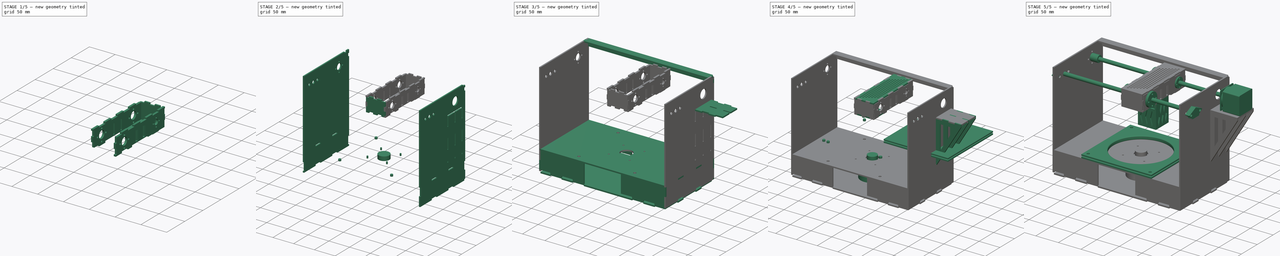
[diagram: build sequence overview — one tinted view per stage of 5, left to right]
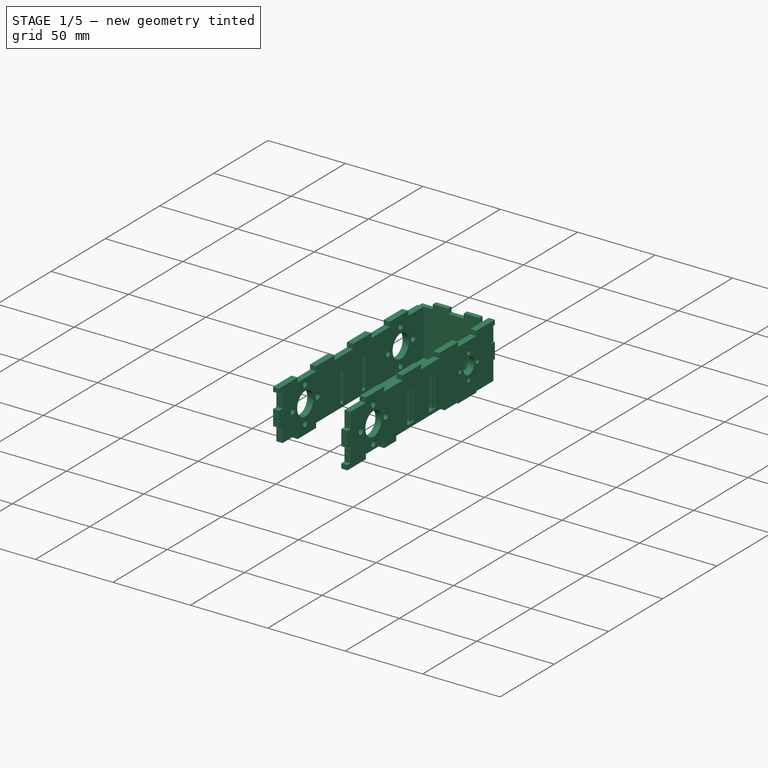
[diagram: stage 1 of 5 — iso view after this stage's code; geometry added in this stage tinted green]
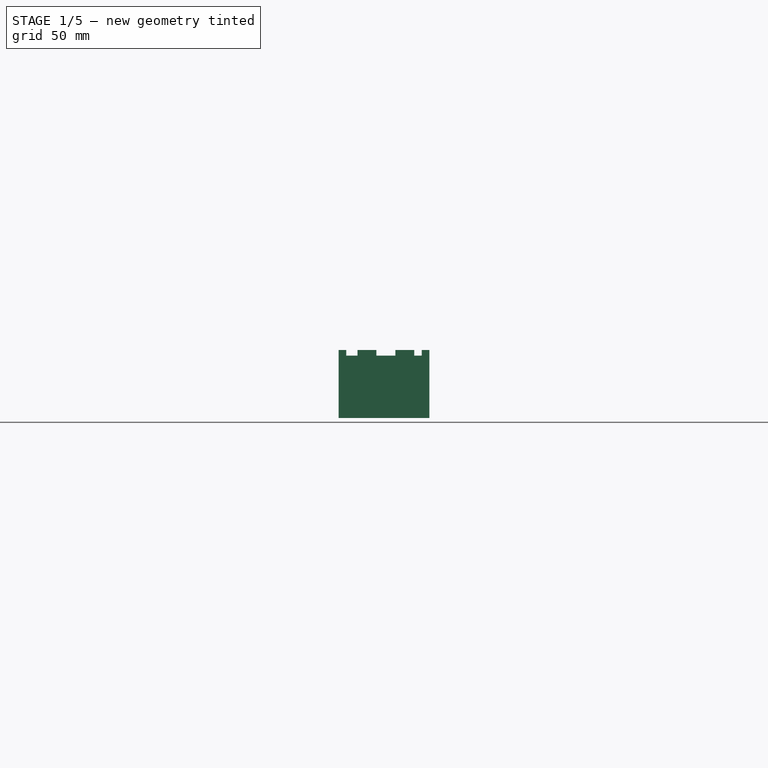
[diagram: stage 1 of 5 — front view after this stage's code; geometry added in this stage tinted green]
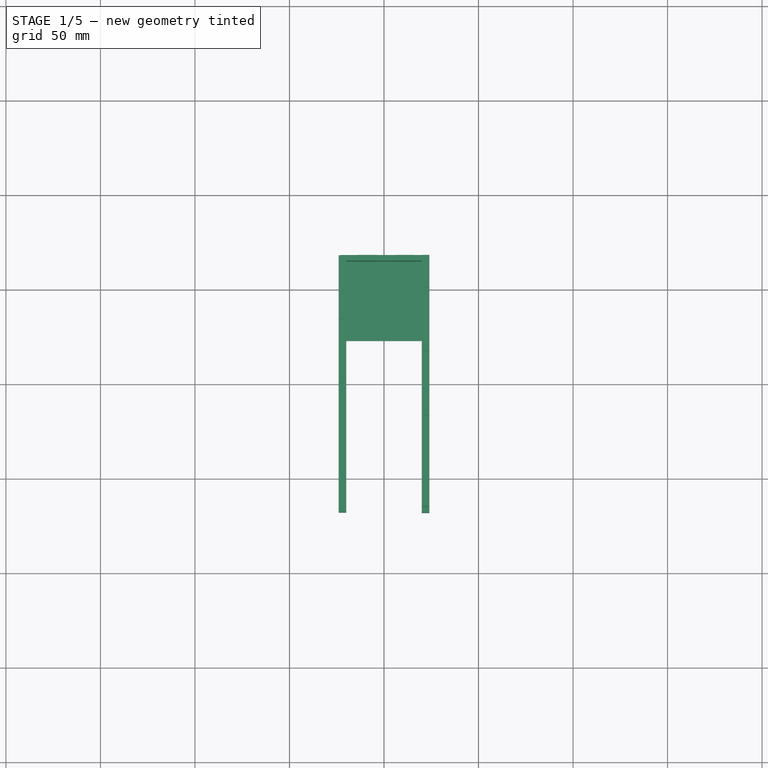
[diagram: stage 1 of 5 — top view after this stage's code; geometry added in this stage tinted green]
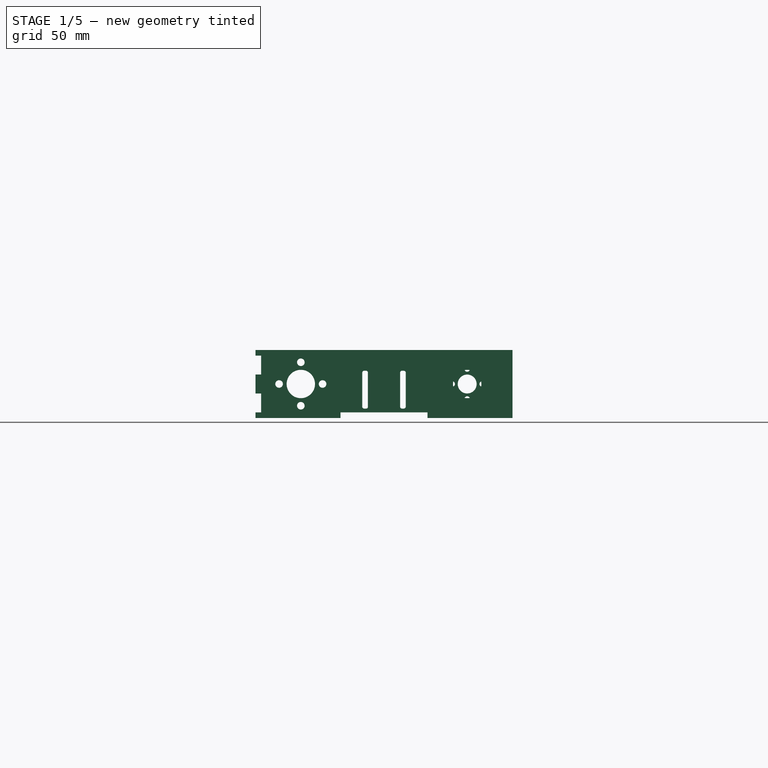
[diagram: stage 1 of 5 — right view after this stage's code; geometry added in this stage tinted green]
FCSTD DOCUMENT  (FreeCAD 0.15R4671 (Git))
Label: Pancake cutter carraige
License: All rights reserved
LicenseURL: http://en.wikipedia.org/wiki/All_rights_reserved
objects: Part::Extrusion×139, Part::Part2DObjectPython×114, Part::MultiFuse×108, Part::Cut×78, Part::Cylinder×75, Part::Box×36, Drawing::FeatureViewPart×20, Part::FeaturePython×15, Part::Fillet×8, Part::Feature×4, Part::MultiCommon×2, Drawing::FeaturePage×2, Sketcher::SketchObject×1
note: 580 computed .brp shape members not serialized (recipe doc carries the construction recipe); baked Part::Feature solids carry a one-line shape summary decoded from their .brp

FEATURE [Part::Box] Box003  label="Cube003"
  Height = 30
  Length = 130
  Placement = pos=(-65,21,55) rot=(0,0,1;0rad)
  Width = 3
FEATURE [Part::Box] Box004  label="Cube004"
  Height = 20
  Length = 3
  Placement = pos=(7,21,57) rot=(0,0,1;0rad)
  Width = 3
FEATURE [Part::Fillet] Fillet  label="Screw slide"
  Base = -> Box004
  Edges = 4 edges r=1: [Edge2,Edge4,Edge6,Edge8]
  Placement = pos=(1.5,0,0) rot=(0,0,1;0rad)
FEATURE [Part::Box] Box005  label="Cube005"
  Height = 20
  Length = 3
  Placement = pos=(7,21,57) rot=(0,0,1;0rad)
  Width = 3
FEATURE [Part::Fillet] Fillet001  label="Screw slide001"
  Base = -> Box005
  Edges = 4 edges r=1: [Edge2,Edge4,Edge6,Edge8]
  Placement = pos=(-18.5,0,0) rot=(0,0,1;0rad)
FEATURE [Part::MultiFuse] Fusion008  label="Screw holes001"
  Shapes = -> [Fillet001,Fillet]
FEATURE [Part::Cut] Cut007  label="Basket holder"
  Base = -> Box003
  Placement = pos=(1,0,0) rot=(0,0,1;1.5708rad)
  Tool = -> Fusion008
FEATURE [Part::Box] Box007  label="Carraige side panel001"
  Height = 30
  Length = 46
  Placement = pos=(-23,65,55) rot=(0,0,1;0rad)
  Width = 3
FEATURE [Part::Box] Box020  label="Carraige base threaded side002"
  Height = 3
  Length = 46
  Placement = pos=(-23,23,52) rot=(0,0,1;0rad)
  Width = 45
FEATURE [Part::Part2DObjectPython] Rectangle073  # Draft 2D object (typed FeaturePython)
  ChamferSize = 0
  Columns = 1
  FilletRadius = 0
  Height = -3
  Length = -6
  MakeFace = true
  Placement = pos=(20,-68,55) rot=(1,0,0;1.5708rad)
  Rows = 1
FEATURE [Part::Part2DObjectPython] Rectangle074  # Draft 2D object (typed FeaturePython)
  ChamferSize = 0
  Columns = 1
  FilletRadius = 0
  Height = -3
  Length = -10
  MakeFace = true
  Placement = pos=(4,-68,55) rot=(1,0,0;1.5708rad)
  Rows = 1
FEATURE [Part::Part2DObjectPython] Rectangle075  # Draft 2D object (typed FeaturePython)
  ChamferSize = 0
  Columns = 1
  FilletRadius = 0
  Height = -3
  Length = -7
  MakeFace = true
  Placement = pos=(-16,-68,55) rot=(1,0,0;1.5708rad)
  Rows = 1
FEATURE [Part::Extrusion] Extrude083
  Base = -> Rectangle073
  Dir = (0,3,0)
  Solid = false
FEATURE [Part::Extrusion] Extrude084
  Base = -> Rectangle074
  Dir = (0,3,0)
  Solid = false
FEATURE [Part::Extrusion] Extrude085
  Base = -> Rectangle075
  Dir = (0,3,0)
  Solid = false
FEATURE [Part::MultiFuse] Fusion062  label="Finger joints aa003"
  Placement = pos=(0,0,0) rot=(0,0,1;3.14159rad)
  Shapes = -> [Extrude083,Extrude085,Extrude084]
FEATURE [Part::Part2DObjectPython] Rectangle076  # Draft 2D object (typed FeaturePython)
  ChamferSize = 0
  Columns = 1
  FilletRadius = 0
  Height = -3
  Length = -10
  MakeFace = true
  Placement = pos=(14,-68,55) rot=(1,0,0;1.5708rad)
  Rows = 1
FEATURE [Part::Part2DObjectPython] Rectangle077  # Draft 2D object (typed FeaturePython)
  ChamferSize = 0
  Columns = 1
  FilletRadius = 0
  Height = -3
  Length = -10
  MakeFace = true
  Placement = pos=(-6,-68,55) rot=(1,0,0;1.5708rad)
  Rows = 1
FEATURE [Part::Extrusion] Extrude086
  Base = -> Rectangle076
  Dir = (0,3,0)
  Solid = false
FEATURE [Part::Extrusion] Extrude087  label="Finger joints bb006"
  Base = -> Rectangle077
  Dir = (0,3,0)
  Solid = false
FEATURE [Part::MultiFuse] Fusion063  label="Finger joints bb007"
  Placement = pos=(0,0,33) rot=(0,0,1;3.14159rad)
  Shapes = -> [Extrude086,Extrude087]
FEATURE [Part::MultiFuse] Fusion064  label="Carriage side panel with top and bottom tabs001"
  Shapes = -> [Fusion062,Box007,Fusion063]
FEATURE [Part::Part2DObjectPython] Rectangle160  # Draft 2D object (typed FeaturePython)
  ChamferSize = 0
  Columns = 1
  FilletRadius = 0
  Height = 10
  Length = -3
  MakeFace = true
  Placement = pos=(24,-68,75) rot=(0.57735,-0.57735,0.57735;4.18879rad)
  Rows = 1
FEATURE [Part::Extrusion] Extrude206
  Base = -> Rectangle160
  Dir = (-3,0,0)
  Placement = pos=(-1,0,0) rot=(0,0,1;0rad)
  Solid = false
FEATURE [Part::Extrusion] Extrude207
  Base = -> Rectangle160
  Dir = (-3,0,0)
  Placement = pos=(-44,0,0) rot=(0,0,1;0rad)
  Solid = false
FEATURE [Part::Extrusion] Extrude208
  Base = -> Rectangle160
  Dir = (-3,0,0)
  Placement = pos=(-1,133,0) rot=(0,0,1;0rad)
  Solid = false
FEATURE [Part::Extrusion] Extrude209
  Base = -> Rectangle160
  Dir = (-3,0,0)
  Placement = pos=(-44,133,0) rot=(0,0,1;0rad)
  Solid = false
FEATURE [Part::MultiFuse] Fusion064065
  Shapes = -> [Extrude206,Extrude207]
FEATURE [Part::MultiFuse] Fusion064066
  Shapes = -> [Extrude208,Extrude209]
FEATURE [Part::Cut] Cut035056  label="Cariage side panel with top and bottom tabs"
  Base = -> Fusion064
  Tool = -> Fusion064066
FEATURE [Drawing::FeatureViewPart] Ortho  label="Ortho_0_0"
  Direction = (0,0,1)
  HiddenWidth = 0.15
  LineWidth = 0.35
  Rotation = 0
  ShowHiddenLines = false
  ShowSmoothLines = false
  Source = -> Cut026
  Tolerance = 0.05
  ViewResult = <g id="Ortho_0_0"\n   transform="rotate(0,35,80.5) translate(35,80.5) scale(1,1)"\n  >\n<g   stroke="rgb(0, 0, 0)"\n   stroke-width="0.35"\n   stroke-linecap="butt"\n   stroke-linejoin="miter"\n   fill="none"\n   transform="scale(1,-1)"\n  >\n<path id= "1" d=" M -23 -65 L -23 -51 " />\n<path id= "2" d=" M -20 -51 L -23 -51 " />\n<path id= "3" d=" M -20 -51 L -20 -34 " />\n<path id= "4" d=" M -20 -34 L -23 -34 " />\n<path id= "5" d=" M -23 -34 L -23 -23 " />\n<path id= "6" d=" M -23 -23 L 20 -23 " />\n<path id= "7" d=" M 20 -34 L 20 -23 " />\n<path id= "8" d=" M 23 -34 L 20 -34 " />\n<path id= "9" d=" M 23 -51 L 23 -34 " />\n<path id= "10" d=" M 23 -51 L 20 -51 " />\n<path id= "11" d=" M 20 -65 L 20 -51 " />\n<path id= "12" d=" M 20 -65 L 14 -65 " />\n<path id= "13" d=" M 14 -68 L 14 -65 " />\n<path id= "14" d=" M 4 -68 L 14 -68 " />\n<path id= "15" d=" M 4 -68 L 4 -65 " />\n<path id= "16" d=" M 4 -65 L -6 -65 " />\n<path id= "17" d=" M -6 -68 L -6 -65 " />\n<path id= "18" d=" M -16 -68 L -6 -68 " />\n<path id= "19" d=" M -16 -68 L -16 -65 " />\n<path id= "20" d=" M -16 -65 L -23 -65 " />\n<path id= "21" d=" M -23 34 L -23 51 " />\n<path id= "22" d=" M -20 34 L -23 34 " />\n<path id= "23" d=" M -20 51 L -23 51 " />\n<path id= "24" d=" M -20 51 L -20 65 " />\n<path id= "25" d=" M -20 65 L -14 65 " />\n<path id= "26" d=" M -14 68 L -14 65 " />\n<path id= "27" d=" M -14 68 L -4 68 " />\n<path id= "28" d=" M -4 68 L -4 65 " />\n<path id= "29" d=" M -4 65 L 6 65 " />\n<path id= "30" d=" M 6 68 L 6 65 " />\n<path id= "31" d=" M 6 68 L 16 68 " />\n<path id= "32" d=" M 16 68 L 16 65 " />\n<path id= "33" d=" M 16 65 L 23 65 " />\n<path id= "34" d=" M 23 51 L 23 65 " />\n<path id= "35" d=" M 23 51 L 20 51 " />\n<path id= "36" d=" M 20 34 L 20 51 " />\n<path id= "37" d=" M 23 34 L 20 34 " />\n<path id= "38" d=" M 23 23 L 23 34 " />\n<path id= "39" d=" M -20 23 L 23 23 " />\n<path id= "40" d=" M -20 23 L -20 34 " />\n</g>\n</g>
  Visible = true
  X = 35
  Y = 80.5
FEATURE [Drawing::FeatureViewPart] Ortho001  label="Ortho_0_001"
  Direction = (0,0,1)
  HiddenWidth = 0.15
  LineWidth = 0.35
  Rotation = 0
  ShowHiddenLines = false
  ShowSmoothLines = false
  Source = -> Cut027
  Tolerance = 0.05
  ViewResult = <blob: 57755 chars omitted>
  Visible = true
  X = 86
  Y = 80.5
FEATURE [Drawing::FeatureViewPart] Ortho002  label="Ortho_0_002"
  Direction = (0,1,0)
  HiddenWidth = 0.15
  LineWidth = 0.35
  Rotation = 90
  ShowHiddenLines = false
  ShowSmoothLines = false
  Source = -> Cut035007
  Tolerance = 0.05
  ViewResult = <g id="Ortho_0_002"\n   transform="rotate(90,-99.5,222) translate(-99.5,222) scale(1,1)"\n  >\n<g   stroke="rgb(0, 0, 0)"\n   stroke-width="0.35"\n   stroke-linecap="butt"\n   stroke-linejoin="miter"\n   fill="none"\n   transform="scale(1,-1)"\n  >\n<path id= "1" d=" M -54 111 L -51 111 " />\n<path id= "2" d=" M -51 114 L -51 111 " />\n<path id= "3" d=" M -54 111 L -54 115.131 " />\n<path id= "4" d=" M 42.846 174 L -54 115.131 " />\n<path id= "5" d=" M 42.846 174 L 49 174 " />\n<path id= "6" d=" M 49 159 L 49 174 " />\n<path id= "7" d=" M 46 159 L 49 159 " />\n<path id= "8" d=" M 46 144 L 46 159 " />\n<path id= "9" d=" M 49 144 L 46 144 " />\n<path id= "10" d=" M 49 129 L 49 144 " />\n<path id= "11" d=" M 46 129 L 49 129 " />\n<path id= "12" d=" M 46 114 L 46 129 " />\n<path id= "13" d=" M 49 114 L 46 114 " />\n<path id= "14" d=" M 49 111 L 49 114 " />\n<path id= "15" d=" M 24 111 L 49 111 " />\n<path id= "16" d=" M 24 111 L 24 114 " />\n<path id= "17" d=" M 24 114 L -1 114 " />\n<path id= "18" d=" M -1 114 L -1 111 " />\n<path id= "19" d=" M -26 111 L -1 111 " />\n<path id= "20" d=" M -26 111 L -26 114 " />\n<path id= "21" d=" M -26 114 L -51 114 " />\n<path id= "22" d=" M -21.6678 123.654 L 37.2757 158.767 " />\n<path id= "23" d=" M 37.2925 123.654 L -21.6678 123.654 " />\n<path id= "24" d=" M 37.2757 158.767 L 37.2925 158.708 " />\n<path id= "25" d=" M 37.2925 158.708 L 37.2925 123.654 " />\n</g>\n</g>
  Visible = true
  X = -99.5
  Y = 222
FEATURE [Drawing::FeatureViewPart] Ortho003  label="Ortho_0_003"
  Direction = (0,1,0)
  HiddenWidth = 0.15
  LineWidth = 0.35
  Rotation = 90
  ShowHiddenLines = false
  ShowSmoothLines = false
  Source = -> Cut035009
  Tolerance = 0.05
  ViewResult = <g id="Ortho_0_003"\n   transform="rotate(90,-30.5,223) translate(-30.5,223) scale(1,1)"\n  >\n<g   stroke="rgb(0, 0, 0)"\n   stroke-width="0.35"\n   stroke-linecap="butt"\n   stroke-linejoin="miter"\n   fill="none"\n   transform="scale(1,-1)"\n  >\n<path id= "1" d=" M -54 111 L -51 111 " />\n<path id= "2" d=" M -51 114 L -51 111 " />\n<path id= "3" d=" M -54 111 L -54 115.131 " />\n<path id= "4" d=" M 42.846 174 L -54 115.131 " />\n<path id= "5" d=" M 42.846 174 L 49 174 " />\n<path id= "6" d=" M 49 159 L 49 174 " />\n<path id= "7" d=" M 46 159 L 49 159 " />\n<path id= "8" d=" M 46 144 L 46 159 " />\n<path id= "9" d=" M 49 144 L 46 144 " />\n<path id= "10" d=" M 49 129 L 49 144 " />\n<path id= "11" d=" M 46 129 L 49 129 " />\n<path id= "12" d=" M 46 114 L 46 129 " />\n<path id= "13" d=" M 49 114 L 46 114 " />\n<path id= "14" d=" M 49 111 L 49 114 " />\n<path id= "15" d=" M 24 111 L 49 111 " />\n<path id= "16" d=" M 24 111 L 24 114 " />\n<path id= "17" d=" M 24 114 L -1 114 " />\n<path id= "18" d=" M -1 114 L -1 111 " />\n<path id= "19" d=" M -26 111 L -1 111 " />\n<path id= "20" d=" M -26 111 L -26 114 " />\n<path id= "21" d=" M -26 114 L -51 114 " />\n<path id= "22" d=" M -21.6678 123.654 L 37.2757 158.767 " />\n<path id= "23" d=" M 37.2925 123.654 L -21.6678 123.654 " />\n<path id= "24" d=" M 37.2757 158.767 L 37.2925 158.708 " />\n<path id= "25" d=" M 37.2925 158.708 L 37.2925 123.654 " />\n</g>\n</g>
  Visible = true
  X = -30.5
  Y = 223
FEATURE [Drawing::FeatureViewPart] Ortho004  label="Ortho_0_004"
  Direction = (0,1,0)
  HiddenWidth = 0.15
  LineWidth = 0.35
  Rotation = 90
  ShowHiddenLines = false
  ShowSmoothLines = false
  Source = -> Cut035011
  Tolerance = 0.05
  ViewResult = <g id="Ortho_0_004"\n   transform="rotate(90,37.5,224) translate(37.5,224) scale(1,1)"\n  >\n<g   stroke="rgb(0, 0, 0)"\n   stroke-width="0.35"\n   stroke-linecap="butt"\n   stroke-linejoin="miter"\n   fill="none"\n   transform="scale(1,-1)"\n  >\n<path id= "1" d=" M -54 111 L -51 111 " />\n<path id= "2" d=" M -51 114 L -51 111 " />\n<path id= "3" d=" M -54 111 L -54 115.131 " />\n<path id= "4" d=" M 42.846 174 L -54 115.131 " />\n<path id= "5" d=" M 42.846 174 L 49 174 " />\n<path id= "6" d=" M 49 159 L 49 174 " />\n<path id= "7" d=" M 46 159 L 49 159 " />\n<path id= "8" d=" M 46 144 L 46 159 " />\n<path id= "9" d=" M 49 144 L 46 144 " />\n<path id= "10" d=" M 49 129 L 49 144 " />\n<path id= "11" d=" M 46 129 L 49 129 " />\n<path id= "12" d=" M 46 114 L 46 129 " />\n<path id= "13" d=" M 49 114 L 46 114 " />\n<path id= "14" d=" M 49 111 L 49 114 " />\n<path id= "15" d=" M 24 111 L 49 111 " />\n<path id= "16" d=" M 24 111 L 24 114 " />\n<path id= "17" d=" M 24 114 L -1 114 " />\n<path id= "18" d=" M -1 114 L -1 111 " />\n<path id= "19" d=" M -26 111 L -1 111 " />\n<path id= "20" d=" M -26 111 L -26 114 " />\n<path id= "21" d=" M -26 114 L -51 114 " />\n<path id= "22" d=" M -21.6678 123.654 L 37.2757 158.767 " />\n<path id= "23" d=" M 37.2925 123.654 L -21.6678 123.654 " />\n<path id= "24" d=" M 37.2757 158.767 L 37.2925 158.708 " />\n<path id= "25" d=" M 37.2925 158.708 L 37.2925 123.654 " />\n</g>\n</g>
  Visible = true
  X = 37.5
  Y = 224
FEATURE [Drawing::FeatureViewPart] Ortho005  label="Ortho_0_005"
  Direction = (0,1,0)
  HiddenWidth = 0.15
  LineWidth = 0.35
  Rotation = 90
  ShowHiddenLines = false
  ShowSmoothLines = false
  Source = -> Cut035014
  Tolerance = 0.05
  ViewResult = <g id="Ortho_0_005"\n   transform="rotate(90,283,128) translate(283,128) scale(1,1)"\n  >\n<g   stroke="rgb(0, 0, 0)"\n   stroke-width="0.35"\n   stroke-linecap="butt"\n   stroke-linejoin="miter"\n   fill="none"\n   transform="scale(1,-1)"\n  >\n<path id= "1" d=" M -112 -169 L -92.5 -169 " />\n<path id= "2" d=" M -92.5 -169 L -92.5 -166 " />\n<path id= "3" d=" M -115 -144 L -115 -119 " />\n<path id= "4" d=" M -112 -119 L -115 -119 " />\n<path id= "5" d=" M -112 -94 L -112 -119 " />\n<path id= "6" d=" M -115 -94 L -112 -94 " />\n<path id= "7" d=" M -115 -94 L -115 -69 " />\n<path id= "8" d=" M -115 -69 L -73 -69 " />\n<path id= "9" d=" M -73 -94 L -73 -69 " />\n<path id= "10" d=" M -70 -94 L -73 -94 " />\n<path id= "11" d=" M -70 -119 L -70 -94 " />\n<path id= "12" d=" M -73 -119 L -70 -119 " />\n<path id= "13" d=" M -73 -144 L -73 -119 " />\n<path id= "14" d=" M -70 -144 L -73 -144 " />\n<path id= "15" d=" M -70 -169 L -70 -144 " />\n<path id= "16" d=" M -73 -169 L -70 -169 " />\n<path id= "17" d=" M -73 -166 L -73 -169 " />\n<path id= "18" d=" M -92.5 -166 L -73 -166 " />\n<path id= "19" d=" M -112 -144 L -112 -169 " />\n<path id= "20" d=" M -115 -144 L -112 -144 " />\n</g>\n</g>
  Visible = true
  X = 283
  Y = 128
FEATURE [Drawing::FeatureViewPart] Ortho006  label="Ortho_0_006"
  Direction = (0,1,0)
  HiddenWidth = 0.15
  LineWidth = 0.35
  Rotation = 90
  ShowHiddenLines = false
  ShowSmoothLines = false
  Source = -> Cut035015
  Tolerance = 0.05
  ViewResult = <g id="Ortho_0_006"\n   transform="rotate(90,100,178) translate(100,178) scale(1,1)"\n  >\n<g   stroke="rgb(0, 0, 0)"\n   stroke-width="0.35"\n   stroke-linecap="butt"\n   stroke-linejoin="miter"\n   fill="none"\n   transform="scale(1,-1)"\n  >\n<path id= "1" d=" M -112 14 L -70 14 " />\n<path id= "2" d=" M -70 14 L -70 39 " />\n<path id= "3" d=" M -115 39 L -115 64 " />\n<path id= "4" d=" M -112 64 L -115 64 " />\n<path id= "5" d=" M -112 89 L -112 64 " />\n<path id= "6" d=" M -115 89 L -112 89 " />\n<path id= "7" d=" M -115 89 L -115 114 " />\n<path id= "8" d=" M -115 114 L -112 114 " />\n<path id= "9" d=" M -112 111 L -112 114 " />\n<path id= "10" d=" M -92.5 111 L -112 111 " />\n<path id= "11" d=" M -92.5 114 L -92.5 111 " />\n<path id= "12" d=" M -92.5 114 L -73 114 " />\n<path id= "13" d=" M -73 89 L -73 114 " />\n<path id= "14" d=" M -70 89 L -73 89 " />\n<path id= "15" d=" M -70 64 L -70 89 " />\n<path id= "16" d=" M -73 64 L -70 64 " />\n<path id= "17" d=" M -73 39 L -73 64 " />\n<path id= "18" d=" M -70 39 L -73 39 " />\n<path id= "19" d=" M -112 39 L -112 14 " />\n<path id= "20" d=" M -115 39 L -112 39 " />\n</g>\n</g>
  Visible = true
  X = 100
  Y = 178
FEATURE [Drawing::FeatureViewPart] Ortho007  label="Ortho_0_007"
  Direction = (0,1,0)
  HiddenWidth = 0.15
  LineWidth = 0.35
  Rotation = 90
  ShowHiddenLines = false
  ShowSmoothLines = false
  Source = -> Cut035016
  Tolerance = 0.05
  ViewResult = <g id="Ortho_0_007"\n   transform="rotate(90,284,226) translate(284,226) scale(1,1)"\n  >\n<g   stroke="rgb(0, 0, 0)"\n   stroke-width="0.35"\n   stroke-linecap="butt"\n   stroke-linejoin="miter"\n   fill="none"\n   transform="scale(1,-1)"\n  >\n<path id= "1" d=" M -112 -169 L -92.5 -169 " />\n<path id= "2" d=" M -92.5 -169 L -92.5 -166 " />\n<path id= "3" d=" M -115 -144 L -115 -119 " />\n<path id= "4" d=" M -112 -119 L -115 -119 " />\n<path id= "5" d=" M -112 -94 L -112 -119 " />\n<path id= "6" d=" M -115 -94 L -112 -94 " />\n<path id= "7" d=" M -115 -94 L -115 -69 " />\n<path id= "8" d=" M -115 -69 L -73 -69 " />\n<path id= "9" d=" M -73 -94 L -73 -69 " />\n<path id= "10" d=" M -70 -94 L -73 -94 " />\n<path id= "11" d=" M -70 -119 L -70 -94 " />\n<path id= "12" d=" M -73 -119 L -70 -119 " />\n<path id= "13" d=" M -73 -144 L -73 -119 " />\n<path id= "14" d=" M -70 -144 L -73 -144 " />\n<path id= "15" d=" M -70 -169 L -70 -144 " />\n<path id= "16" d=" M -73 -169 L -70 -169 " />\n<path id= "17" d=" M -73 -166 L -73 -169 " />\n<path id= "18" d=" M -92.5 -166 L -73 -166 " />\n<path id= "19" d=" M -112 -144 L -112 -169 " />\n<path id= "20" d=" M -115 -144 L -112 -144 " />\n</g>\n</g>
  Visible = true
  X = 284
  Y = 226
FEATURE [Drawing::FeatureViewPart] Ortho008  label="Ortho_0_008"
  Direction = (0,1,0)
  HiddenWidth = 0.15
  LineWidth = 0.35
  Rotation = 90
  ShowHiddenLines = false
  ShowSmoothLines = false
  Source = -> Cut035028
  Tolerance = 0.05
  ViewResult = <g id="Ortho_0_008"\n   transform="rotate(90,206,128) translate(206,128) scale(1,1)"\n  >\n<g   stroke="rgb(0, 0, 0)"\n   stroke-width="0.35"\n   stroke-linecap="butt"\n   stroke-linejoin="miter"\n   fill="none"\n   transform="scale(1,-1)"\n  >\n<path id= "1" d=" M -112 14 L -70 14 " />\n<path id= "2" d=" M -70 14 L -70 39 " />\n<path id= "3" d=" M -115 39 L -115 64 " />\n<path id= "4" d=" M -112 64 L -115 64 " />\n<path id= "5" d=" M -112 89 L -112 64 " />\n<path id= "6" d=" M -115 89 L -112 89 " />\n<path id= "7" d=" M -115 89 L -115 111 " />\n<path id= "8" d=" M -112 111 L -115 111 " />\n<path id= "9" d=" M -92.5 111 L -112 111 " />\n<path id= "10" d=" M -92.5 114 L -92.5 111 " />\n<path id= "11" d=" M -92.5 114 L -73 114 " />\n<path id= "12" d=" M -73 89 L -73 114 " />\n<path id= "13" d=" M -70 89 L -73 89 " />\n<path id= "14" d=" M -70 64 L -70 89 " />\n<path id= "15" d=" M -73 64 L -70 64 " />\n<path id= "16" d=" M -73 39 L -73 64 " />\n<path id= "17" d=" M -70 39 L -73 39 " />\n<path id= "18" d=" M -112 39 L -112 14 " />\n<path id= "19" d=" M -115 39 L -112 39 " />\n</g>\n</g>
  Visible = true
  X = 206
  Y = 128
FEATURE [Part::Feature] Cut035055001  label="Carriage side panel with top and bottom tabs005"
  shape: bbox 48 x 3 x 36 mm, 32 faces (baked)
FEATURE [Drawing::FeatureViewPart] Ortho009  label="Ortho_0_009"
  Direction = (0,1,0)
  HiddenWidth = 0.15
  LineWidth = 0.35
  Rotation = 90
  ShowHiddenLines = false
  ShowSmoothLines = false
  Source = -> Cut035055001
  Tolerance = 0.05
  ViewResult = <g id="Ortho_0_009"\n   transform="rotate(90,246,15.5) translate(246,15.5) scale(1,1)"\n  >\n<g   stroke="rgb(0, 0, 0)"\n   stroke-width="0.35"\n   stroke-linecap="butt"\n   stroke-linejoin="miter"\n   fill="none"\n   transform="scale(1,-1)"\n  >\n<path id= "1" d=" M 55 -16 L 55 -6 " />\n<path id= "2" d=" M 52 -16 L 55 -16 " />\n<path id= "3" d=" M 52 -24 L 52 -16 " />\n<path id= "4" d=" M 55 -6 L 52 -6 " />\n<path id= "5" d=" M 52 -6 L 52 4 " />\n<path id= "6" d=" M 55 4 L 55 14 " />\n<path id= "7" d=" M 52 4 L 55 4 " />\n<path id= "8" d=" M 55 14 L 52 14 " />\n<path id= "9" d=" M 52 14 L 52 21 " />\n<path id= "10" d=" M 55 24 L 65 24 " />\n<path id= "11" d=" M 65 24 L 65 21 " />\n<path id= "12" d=" M 55 21 L 55 24 " />\n<path id= "13" d=" M 75 21 L 65 21 " />\n<path id= "14" d=" M 75 24 L 75 21 " />\n<path id= "15" d=" M 75 24 L 85 24 " />\n<path id= "16" d=" M 85 14 L 85 24 " />\n<path id= "17" d=" M 52 21 L 55 21 " />\n<path id= "18" d=" M 85 14 L 88 14 " />\n<path id= "19" d=" M 88 14 L 88 4 " />\n<path id= "20" d=" M 88 4 L 85 4 " />\n<path id= "21" d=" M 85 -6 L 85 4 " />\n<path id= "22" d=" M 85 -6 L 88 -6 " />\n<path id= "23" d=" M 88 -6 L 88 -16 " />\n<path id= "24" d=" M 88 -16 L 85 -16 " />\n<path id= "25" d=" M 85 -24 L 85 -16 " />\n<path id= "26" d=" M 75 -24 L 85 -24 " />\n<path id= "27" d=" M 75 -21 L 75 -24 " />\n<path id= "28" d=" M 75 -21 L 65 -21 " />\n<path id= "29" d=" M 65 -21 L 65 -24 " />\n<path id= "30" d=" M 65 -24 L 52 -24 " />\n</g>\n</g>
  Visible = true
  X = 246
  Y = 15.5
FEATURE [Part::Feature] Cut035056001  label="Cariage side panel with top and bottom tabs001"
  shape: bbox 48 x 3 x 36 mm, 32 faces (baked)
FEATURE [Drawing::FeatureViewPart] Ortho010  label="Ortho_0_010"
  Direction = (0,1,0)
  HiddenWidth = 0.15
  LineWidth = 0.35
  Rotation = 90
  ShowHiddenLines = false
  ShowSmoothLines = false
  Source = -> Cut035056001
  Tolerance = 0.05
  ViewResult = <g id="Ortho_0_010"\n   transform="rotate(90,297,15.5) translate(297,15.5) scale(1,1)"\n  >\n<g   stroke="rgb(0, 0, 0)"\n   stroke-width="0.35"\n   stroke-linecap="butt"\n   stroke-linejoin="miter"\n   fill="none"\n   transform="scale(1,-1)"\n  >\n<path id= "1" d=" M 55 6 L 55 16 " />\n<path id= "2" d=" M 55 6 L 52 6 " />\n<path id= "3" d=" M 52 6 L 52 -4 " />\n<path id= "4" d=" M 55 -14 L 55 -4 " />\n<path id= "5" d=" M 55 -14 L 52 -14 " />\n<path id= "6" d=" M 52 -14 L 52 -21 " />\n<path id= "7" d=" M 85 -24 L 85 -14 " />\n<path id= "8" d=" M 75 -24 L 85 -24 " />\n<path id= "9" d=" M 75 -21 L 75 -24 " />\n<path id= "10" d=" M 75 -21 L 65 -21 " />\n<path id= "11" d=" M 55 -24 L 65 -24 " />\n<path id= "12" d=" M 65 -21 L 65 -24 " />\n<path id= "13" d=" M 55 -24 L 55 -21 " />\n<path id= "14" d=" M 52 -21 L 55 -21 " />\n<path id= "15" d=" M 52 -4 L 55 -4 " />\n<path id= "16" d=" M 52 16 L 55 16 " />\n<path id= "17" d=" M 52 24 L 52 16 " />\n<path id= "18" d=" M 85 -14 L 88 -14 " />\n<path id= "19" d=" M 85 -4 L 85 6 " />\n<path id= "20" d=" M 85 6 L 88 6 " />\n<path id= "21" d=" M 65 24 L 65 21 " />\n<path id= "22" d=" M 75 21 L 65 21 " />\n<path id= "23" d=" M 75 24 L 75 21 " />\n<path id= "24" d=" M 75 24 L 85 24 " />\n<path id= "25" d=" M 85 16 L 85 24 " />\n<path id= "26" d=" M 88 16 L 85 16 " />\n<path id= "27" d=" M 88 6 L 88 16 " />\n<path id= "28" d=" M 88 -4 L 85 -4 " />\n<path id= "29" d=" M 88 -14 L 88 -4 " />\n<path id= "30" d=" M 52 24 L 65 24 " />\n</g>\n</g>
  Visible = true
  X = 297
  Y = 15.5
FEATURE [Part::Feature] Fusion064067001  label="Carriage front and back with all tabs003"
  shape: bbox 48 x 136 x 36 mm, 136 faces, 2 solids (baked)
FEATURE [Part::Box] Box048  label="Cube027"
  Height = 51
  Length = 10
  Placement = pos=(-28,-78,47) rot=(0,0,1;0rad)
  Width = 156
FEATURE [Part::Feature] Fusion064067002  label="Carriage front and back with all tabs004"
  shape: bbox 48 x 136 x 36 mm, 136 faces, 2 solids (baked)
FEATURE [Part::Box] Box049  label="Cube028"
  Height = 51
  Length = 10
  Placement = pos=(16,-78,47) rot=(0,0,1;0rad)
  Width = 156
FEATURE [Part::Cut] Cut035056002  label="Carriage front for drawing"
  Base = -> Fusion064067001
  Tool = -> Box048
FEATURE [Part::Cut] Cut035056003  label="Carriage back for drawing"
  Base = -> Fusion064067002
  Tool = -> Box049
FEATURE [Drawing::FeatureViewPart] Ortho011  label="Ortho_0_011"
  Direction = (1,0,0)
  HiddenWidth = 0.15
  LineWidth = 0.35
  Rotation = -90
  ShowHiddenLines = false
  ShowSmoothLines = false
  Source = -> Cut035056002
  Tolerance = 0.05
  ViewResult = <blob: 2855 chars omitted>
  Visible = true
  X = 289
  Y = 196.5
FEATURE [Drawing::FeatureViewPart] Ortho012  label="Ortho_0_012"
  Direction = (1,0,0)
  HiddenWidth = 0.15
  LineWidth = 0.35
  Rotation = -90
  ShowHiddenLines = false
  ShowSmoothLines = false
  Source = -> Cut035056003
  Tolerance = 0.05
  ViewResult = <blob: 2861 chars omitted>
  Visible = true
  X = 288
  Y = 241.5
FEATURE [Drawing::FeatureViewPart] Ortho013  label="Ortho_0_013"
  Direction = (0,0,1)
  HiddenWidth = 0.15
  LineWidth = 0.35
  Rotation = 0
  ShowHiddenLines = false
  ShowSmoothLines = false
  Source = -> Cut035040
  Tolerance = 0.05
  ViewResult = <g id="Ortho_0_013"\n   transform="rotate(0,183.5,272) translate(183.5,272) scale(1,1)"\n  >\n<g   stroke="rgb(0, 0, 0)"\n   stroke-width="0.35"\n   stroke-linecap="butt"\n   stroke-linejoin="miter"\n   fill="none"\n   transform="scale(1,-1)"\n  >\n<path id= "1" d=" M -169 63 L -169 70.5 " />\n<path id= "2" d=" M -169 70.5 L -166 70.5 " />\n<path id= "3" d=" M -166 75 L -166 70.5 " />\n<path id= "4" d=" M -131 75 L -166 75 " />\n<path id= "5" d=" M -131 78 L -131 75 " />\n<path id= "6" d=" M -131 78 L -96 78 " />\n<path id= "7" d=" M -96 78 L -96 75 " />\n<path id= "8" d=" M -61 75 L -96 75 " />\n<path id= "9" d=" M -61 78 L -61 75 " />\n<path id= "10" d=" M -61 78 L -26 78 " />\n<path id= "11" d=" M -26 78 L -26 75 " />\n<path id= "12" d=" M 9 75 L -26 75 " />\n<path id= "13" d=" M 9 78 L 9 75 " />\n<path id= "14" d=" M 9 78 L 44 78 " />\n<path id= "15" d=" M 44 78 L 44 75 " />\n<path id= "16" d=" M 79 75 L 44 75 " />\n<path id= "17" d=" M 79 78 L 79 75 " />\n<path id= "18" d=" M 79 78 L 111 78 " />\n<path id= "19" d=" M 111 75 L 111 78 " />\n<path id= "20" d=" M 114 75 L 111 75 " />\n<path id= "21" d=" M 114 70.5 L 114 75 " />\n<path id= "22" d=" M 114 70.5 L 111 70.5 " />\n<path id= "23" d=" M 111 63 L 111 70.5 " />\n<path id= "24" d=" M -169 63 L 111 63 " />\n</g>\n</g>
  Visible = true
  X = 183.5
  Y = 272
FEATURE [Drawing::FeatureViewPart] Ortho014  label="Ortho_0_014"
  Direction = (0,1,0)
  HiddenWidth = 0.15
  LineWidth = 0.35
  Rotation = 90
  ShowHiddenLines = false
  ShowSmoothLines = false
  Source = -> Cut035041
  Tolerance = 0.05
  ViewResult = <g id="Ortho_0_014"\n   transform="rotate(90,187,94) translate(187,94) scale(1,1)"\n  >\n<g   stroke="rgb(0, 0, 0)"\n   stroke-width="0.35"\n   stroke-linecap="butt"\n   stroke-linejoin="miter"\n   fill="none"\n   transform="scale(1,-1)"\n  >\n<path id= "1" d=" M 80 -169 L 87.5 -169 " />\n<path id= "2" d=" M 87.5 -169 L 87.5 -166 " />\n<path id= "3" d=" M 80 114 L 87.5 114 " />\n<path id= "4" d=" M 87.5 114 L 87.5 111 " />\n<path id= "5" d=" M 92 111 L 87.5 111 " />\n<path id= "6" d=" M 92 79 L 92 111 " />\n<path id= "7" d=" M 95 79 L 92 79 " />\n<path id= "8" d=" M 95 44 L 95 79 " />\n<path id= "9" d=" M 92 44 L 95 44 " />\n<path id= "10" d=" M 92 9 L 92 44 " />\n<path id= "11" d=" M 95 9 L 92 9 " />\n<path id= "12" d=" M 95 -26 L 95 9 " />\n<path id= "13" d=" M 92 -26 L 95 -26 " />\n<path id= "14" d=" M 92 -61 L 92 -26 " />\n<path id= "15" d=" M 95 -61 L 92 -61 " />\n<path id= "16" d=" M 95 -96 L 95 -61 " />\n<path id= "17" d=" M 92 -96 L 95 -96 " />\n<path id= "18" d=" M 92 -131 L 92 -96 " />\n<path id= "19" d=" M 95 -131 L 92 -131 " />\n<path id= "20" d=" M 95 -166 L 95 -131 " />\n<path id= "21" d=" M 87.5 -166 L 95 -166 " />\n<path id= "22" d=" M 80 -169 L 80 114 " />\n</g>\n</g>
  Visible = true
  X = 187
  Y = 94
FEATURE [Drawing::FeatureViewPart] Ortho015  label="Ortho_0_015"
  Direction = (0,0,1)
  HiddenWidth = 0.15
  LineWidth = 0.35
  Rotation = 0
  ShowHiddenLines = false
  ShowSmoothLines = false
  Source = -> Cut035033
  Tolerance = 0.05
  ViewResult = <blob: 2346 chars omitted>
  Visible = true
  X = 184.5
  Y = 93
FEATURE [Drawing::FeatureViewPart] Ortho016  label="Ortho_0_016"
  Direction = (0,0,1)
  HiddenWidth = 0.15
  LineWidth = 0.35
  Rotation = 0
  ShowHiddenLines = false
  ShowSmoothLines = false
  Source = -> Cut035052
  Tolerance = 0.05
  ViewResult = <blob: 2708 chars omitted>
  Visible = true
  X = 181.5
  Y = 293
FEATURE [Drawing::FeatureViewPart] Ortho017  label="Ortho_0_017"
  Direction = (1,0,0)
  HiddenWidth = 0.15
  LineWidth = 0.35
  Rotation = -180
  ShowHiddenLines = false
  ShowSmoothLines = false
  Source = -> Cut035053
  Tolerance = 0.05
  ViewResult = <blob: 2518 chars omitted>
  Visible = true
  X = 404.5
  Y = 92.5
FEATURE [Drawing::FeatureViewPart] Ortho018  label="Ortho_0_018"
  Direction = (1,0,0)
  HiddenWidth = 0.15
  LineWidth = 0.35
  Rotation = -180
  ShowHiddenLines = false
  ShowSmoothLines = false
  Source = -> Cut035054
  Tolerance = 0.05
  ViewResult = <blob: 3993 chars omitted>
  Visible = true
  X = 404.5
  Y = 259.5
FEATURE [Drawing::FeaturePage] Page001
  Group = -> [Ortho013,Ortho014,Ortho015,Ortho016,Ortho017,Ortho018]
FEATURE [Drawing::FeatureViewPart] Ortho019  label="Ortho_0_019"
  Direction = (0,0,1)
  HiddenWidth = 0.15
  LineWidth = 0.35
  Rotation = 0
  ShowHiddenLines = false
  ShowSmoothLines = false
  Source = -> Cut035012
  Tolerance = 0.05
  ViewResult = <g id="Ortho_0_019"\n   transform="rotate(0,220,100) translate(220,100) scale(1,1)"\n  >\n<g   stroke="rgb(0, 0, 0)"\n   stroke-width="0.35"\n   stroke-linecap="butt"\n   stroke-linejoin="miter"\n   fill="none"\n   transform="scale(1,-1)"\n  >\n<path id= "1" d=" M 111 19.9878 L 111 20 " />\n<path id= "2" d=" M 111 20 L 111 42 " />\n<path id= "3" d=" M 111 20 L 114 20 " />\n<path id= "4" d=" M 111 19.9878 L 114 19.9878 " />\n<path id= "5" d=" M 111 42 L 114 42 " />\n<path id= "6" d=" M 114 42 L 114 45 " />\n<path id= "7" d=" M 111 45 L 114 45 " />\n<path id= "8" d=" M 111 45 L 111 66 " />\n<path id= "9" d=" M 111 66 L 114 66 " />\n<path id= "10" d=" M 114 66 L 114 69 " />\n<path id= "11" d=" M 114 69 L 129 69 " />\n<path id= "12" d=" M 129 66 L 129 69 " />\n<path id= "13" d=" M 144 66 L 129 66 " />\n<path id= "14" d=" M 144 66 L 144 69 " />\n<path id= "15" d=" M 144 69 L 159 69 " />\n<path id= "16" d=" M 159 66 L 159 69 " />\n<path id= "17" d=" M 174 66 L 159 66 " />\n<path id= "18" d=" M 174 45 L 174 66 " />\n<path id= "19" d=" M 174 45 L 159 45 " />\n<path id= "20" d=" M 159 42 L 159 45 " />\n<path id= "21" d=" M 174 42 L 159 42 " />\n<path id= "22" d=" M 174 20 L 174 42 " />\n<path id= "23" d=" M 174 20 L 159 20 " />\n<path id= "24" d=" M 159 17 L 159 20 " />\n<path id= "25" d=" M 144 17 L 159 17 " />\n<path id= "26" d=" M 144 17 L 144 20 " />\n<path id= "27" d=" M 144 20 L 129 20 " />\n<path id= "28" d=" M 129 17 L 129 20 " />\n<path id= "29" d=" M 114 17 L 129 17 " />\n<path id= "30" d=" M 114 17 L 114 20 " />\n<path id= "31" d=" M 144 42 L 144 45 " />\n<path id= "32" d=" M 144 45 L 129 45 " />\n<path id= "33" d=" M 129 42 L 129 45 " />\n<path id= "34" d=" M 144 42 L 129 42 " />\n<path id= "35" d=" M 111 44.9878 L 114 44.9878 " />\n<path id= "36" d=" M 111 68.9878 L 114 68.9878 " />\n<path id= "37" d=" M 111 44.9878 L 111 45 " />\n<path id= "38" d=" M 111 69 L 114 69 " />\n<path id= "39" d=" M 111 68.9878 L 111 69 " />\n</g>\n</g>
  Visible = true
  X = 220
  Y = 100
FEATURE [Drawing::FeaturePage] Page
  EditableTexts = AUTHOR NAME | CREATION DATE | SUPERVISOR NAME | CHECK DATE | SCALE | WEIGHT | NUMBER | SHEET | TITLE | SUBTITLE
  Group = -> [Ortho,Ortho001,Ortho002,Ortho003,Ortho004,Ortho005,Ortho006,Ortho007,Ortho008,Ortho009,Ortho010,Ortho011,Ortho012,Ortho019]
FEATURE [Part::FeaturePython] Array017  # Draft array (typed FeaturePython)
  Angle = 360
  ArrayType = 1
  Axis = (0,0,1)
  Base = -> Cut007
  Center = (0,0,0)
  Fuse = false
  IntervalAxis = (0,0,0)
  IntervalX = (1,0,0)
  IntervalY = (0,1,0)
  IntervalZ = (0,0,0)
  NumberPolar = 2
  NumberX = 2
  NumberY = 2
  NumberZ = 1
  Placement = pos=(0,0,0) rot=(0,0,1;3.14159rad)
FEATURE [Part::Cylinder] Cylinder133  label="Cylinder175"
  Angle = 360
  Height = 10
  Placement = pos=(-29,-44,81.5) rot=(0,1,0;1.5708rad)
  Radius = 2
FEATURE [Part::Cylinder] Cylinder134  label="Cylinder176"
  Angle = 360
  Height = 10
  Placement = pos=(-29,-44,58.5) rot=(0,1,0;1.5708rad)
  Radius = 2
FEATURE [Part::Cylinder] Cylinder135  label="Cylinder177"
  Angle = 360
  Height = 10
  Placement = pos=(-29,-55.5,70) rot=(0,1,0;1.5708rad)
  Radius = 2
FEATURE [Part::Cylinder] Cylinder136  label="Cylinder178"
  Angle = 360
  Height = 10
  Placement = pos=(-29,-32.5,70) rot=(0,1,0;1.5708rad)
  Radius = 2
FEATURE [Part::MultiFuse] Fusion064067003  label="Screw holes005"
  Shapes = -> [Cylinder136,Cylinder135,Cylinder133,Cylinder134]
FEATURE [Part::Cylinder] Cylinder137  label="Cylinder179"
  Angle = 360
  Height = 10
  Placement = pos=(-29,-44,81.5) rot=(0,1,0;1.5708rad)
  Radius = 2
FEATURE [Part::Cylinder] Cylinder138  label="Cylinder180"
  Angle = 360
  Height = 10
  Placement = pos=(-29,-44,58.5) rot=(0,1,0;1.5708rad)
  Radius = 2
FEATURE [Part::Cylinder] Cylinder139  label="Cylinder181"
  Angle = 360
  Height = 10
  Placement = pos=(-29,-55.5,70) rot=(0,1,0;1.5708rad)
  Radius = 2
FEATURE [Part::Cylinder] Cylinder140  label="Cylinder182"
  Angle = 360
  Height = 10
  Placement = pos=(-29,-32.5,70) rot=(0,1,0;1.5708rad)
  Radius = 2
FEATURE [Part::MultiFuse] Fusion064067004  label="Screw holes006"
  Placement = pos=(0,88,0) rot=(0,0,1;0rad)
  Shapes = -> [Cylinder140,Cylinder139,Cylinder137,Cylinder138]
FEATURE [Part::Cylinder] Cylinder141  label="Cylinder183"
  Angle = 360
  Height = 10
  Placement = pos=(-29,-44,81.5) rot=(0,1,0;1.5708rad)
  Radius = 2
FEATURE [Part::Cylinder] Cylinder142  label="Cylinder184"
  Angle = 360
  Height = 10
  Placement = pos=(-29,-44,58.5) rot=(0,1,0;1.5708rad)
  Radius = 2
FEATURE [Part::Cylinder] Cylinder143  label="Cylinder185"
  Angle = 360
  Height = 10
  Placement = pos=(-29,-55.5,70) rot=(0,1,0;1.5708rad)
  Radius = 2
FEATURE [Part::Cylinder] Cylinder144  label="Cylinder186"
  Angle = 360
  Height = 10
  Placement = pos=(-29,-32.5,70) rot=(0,1,0;1.5708rad)
  Radius = 2
FEATURE [Part::MultiFuse] Fusion064067005  label="Screw holes007"
  Placement = pos=(49,0,0) rot=(0,0,1;0rad)
  Shapes = -> [Cylinder144,Cylinder143,Cylinder141,Cylinder142]
FEATURE [Part::MultiFuse] Fusion064067006  label="screw holes for linear bearings001"
  Shapes = -> [Fusion064067004,Fusion064067005,Fusion064067003]
FEATURE [Part::Cylinder] Cylinder145  label="Cylinder187"
  Angle = 360
  Height = 10
  Placement = pos=(18,44,62) rot=(0,1,0;1.5708rad)
  Radius = 1.5
FEATURE [Part::Cylinder] Cylinder146  label="Cylinder188"
  Angle = 360
  Height = 10
  Placement = pos=(18,44,78) rot=(0,1,0;1.5708rad)
  Radius = 1.5
FEATURE [Part::Cylinder] Cylinder147  label="Cylinder189"
  Angle = 360
  Height = 10
  Placement = pos=(18,52,70) rot=(0,1,0;1.5708rad)
  Radius = 1.5
FEATURE [Part::Cylinder] Cylinder148  label="Cylinder190"
  Angle = 360
  Height = 10
  Placement = pos=(18,36,70) rot=(0,1,0;1.5708rad)
  Radius = 1.5
FEATURE [Part::MultiFuse] Fusion064067007  label="Screw holes for threaded bearing001"
  Shapes = -> [Cylinder148,Cylinder145,Cylinder146,Cylinder147]
FEATURE [Part::MultiFuse] Fusion064067008  label="Screw holes on carraige for bearings001"
  Shapes = -> [Fusion064067007,Fusion064067006]
FEATURE [Part::Cut] Cut035056004  label="Carriage front and back with screwholes"
  Base = -> Array017
  Tool = -> Fusion064067008
FEATURE [Part::Cylinder] Cylinder149  label="Borehole003"
  Angle = 360
  Height = 25
  Placement = pos=(-36.0062,44,70) rot=(0,1,0;1.5708rad)
  Radius = 7.5
FEATURE [Part::Cylinder] Cylinder150  label="Borehole004"
  Angle = 360
  Height = 25
  Placement = pos=(-36.0062,-44,70) rot=(0,1,0;1.5708rad)
  Radius = 7.5
FEATURE [Part::Cylinder] Cylinder151  label="Borehole005"
  Angle = 360
  Height = 25
  Placement = pos=(10,-44,70) rot=(0,1,0;1.5708rad)
  Radius = 7.5
FEATURE [Part::MultiFuse] Fusion064067009  label="Boreholes for linear bearings001"
  Shapes = -> [Cylinder150,Cylinder151,Cylinder149]
FEATURE [Part::Cylinder] Cylinder152  label="Borehole for threaded bearing001"
  Angle = 360
  Height = 25
  Placement = pos=(10,44,70) rot=(0,1,0;1.5708rad)
  Radius = 5
FEATURE [Part::MultiFuse] Fusion064067010  label="Boreholes for bearings001"
  Shapes = -> [Cylinder152,Fusion064067009]
FEATURE [Part::Cut] Cut035056005  label="carriage front and back with borholes for bearings"
  Base = -> Cut035056004
  Tool = -> Fusion064067010
FEATURE [Part::Part2DObjectPython] Rectangle161 .. Rectangle164  x4 (patterned run collapsed; names and placements below)
  ChamferSize = 0
  Columns = 1
  FilletRadius = 0
  Height = 3
  Length = -17
  MakeFace = true
  Rows = 1
  placements: 4 in arithmetic series — first pos=(24,-51,88) rot=(0.57735,-0.57735,0.57735;4.18879rad), step (0,34,0), last pos=(24,51,88) rot=(0.57735,-0.57735,0.57735;4.18879rad)
FEATURE [Part::Extrusion] Extrude214
  Base = -> Rectangle161
  Dir = (-3,0,0)
  Solid = false
FEATURE [Part::Extrusion] Extrude215
  Base = -> Rectangle162
  Dir = (-3,0,0)
  Solid = false
FEATURE [Part::Extrusion] Extrude216
  Base = -> Rectangle163
  Dir = (-3,0,0)
  Solid = false
FEATURE [Part::Extrusion] Extrude217
  Base = -> Rectangle164
  Dir = (-3,0,0)
  Solid = false
FEATURE [Part::MultiFuse] Fusion064067011  label="Finger Joints B Front002"
  Placement = pos=(-1,0,0) rot=(0,0,1;0rad)
  Shapes = -> [Extrude214,Extrude215,Extrude216,Extrude217]
FEATURE [Part::Part2DObjectPython] Rectangle165 .. Rectangle168  x4 (patterned run collapsed; names and placements below)
  ChamferSize = 0
  Columns = 1
  FilletRadius = 0
  Height = 3
  Length = -17
  MakeFace = true
  Rows = 1
  placements: 4 in arithmetic series — first pos=(24,-68,88) rot=(0.57735,-0.57735,0.57735;4.18879rad), step (0,34,0), last pos=(24,34,88) rot=(0.57735,-0.57735,0.57735;4.18879rad)
FEATURE [Part::Extrusion] Extrude218
  Base = -> Rectangle165
  Dir = (-3,0,0)
  Solid = false
FEATURE [Part::Extrusion] Extrude219
  Base = -> Rectangle166
  Dir = (-3,0,0)
  Solid = false
FEATURE [Part::Extrusion] Extrude220
  Base = -> Rectangle167
  Dir = (-3,0,0)
  Solid = false
FEATURE [Part::Extrusion] Extrude221
  Base = -> Rectangle168
  Dir = (-3,0,0)
  Solid = false
FEATURE [Part::MultiFuse] Fusion064067012  label="Finger joints A Rear002"
  Placement = pos=(-44,0,0) rot=(0,0,1;0rad)
  Shapes = -> [Extrude218,Extrude219,Extrude220,Extrude221]
FEATURE [Part::MultiFuse] Fusion064067013  label="Finger joints A002"
  Shapes = -> [Fusion064067011,Fusion064067012]
FEATURE [Part::MultiFuse] Fusion064067014  label="Carriage front & back with top joints"
  Shapes = -> [Cut035056005,Fusion064067013]
FEATURE [Part::Part2DObjectPython] Rectangle169 .. Rectangle172  x4 (patterned run collapsed; names and placements below)
  ChamferSize = 0
  Columns = 1
  FilletRadius = 0
  Height = 3
  Length = -17
  MakeFace = true
  Rows = 1
  placements: 4 in arithmetic series — first pos=(24,-68,88) rot=(0.57735,-0.57735,0.57735;4.18879rad), step (0,34,0), last pos=(24,34,88) rot=(0.57735,-0.57735,0.57735;4.18879rad)
FEATURE [Part::Extrusion] Extrude222
  Base = -> Rectangle169
  Dir = (-3,0,0)
  Solid = false
FEATURE [Part::Extrusion] Extrude223
  Base = -> Rectangle170
  Dir = (-3,0,0)
  Solid = false
FEATURE [Part::Extrusion] Extrude224
  Base = -> Rectangle171
  Dir = (-3,0,0)
  Solid = false
FEATURE [Part::Extrusion] Extrude225
  Base = -> Rectangle172
  Dir = (-3,0,0)
  Solid = false
FEATURE [Part::MultiFuse] Fusion064067015  label="Finger joints A front004"
  Placement = pos=(-1,0,0) rot=(0,0,1;0rad)
  Shapes = -> [Extrude222,Extrude223,Extrude224,Extrude225]
FEATURE [Part::Part2DObjectPython] Rectangle173 .. Rectangle176  x4 (patterned run collapsed; names and placements below)
  ChamferSize = 0
  Columns = 1
  FilletRadius = 0
  Height = 3
  Length = -17
  MakeFace = true
  Rows = 1
  placements: 4 in arithmetic series — first pos=(24,-51,88) rot=(0.57735,-0.57735,0.57735;4.18879rad), step (0,34,0), last pos=(24,51,88) rot=(0.57735,-0.57735,0.57735;4.18879rad)
FEATURE [Part::Extrusion] Extrude226
  Base = -> Rectangle173
  Dir = (-3,0,0)
  Solid = false
FEATURE [Part::Extrusion] Extrude227
  Base = -> Rectangle174
  Dir = (-3,0,0)
  Solid = false
FEATURE [Part::Extrusion] Extrude228
  Base = -> Rectangle175
  Dir = (-3,0,0)
  Solid = false
FEATURE [Part::Extrusion] Extrude229
  Base = -> Rectangle176
  Dir = (-3,0,0)
  Solid = false
FEATURE [Part::MultiFuse] Fusion064067016  label="Finger Joints B Rear004"
  Placement = pos=(-44,0,0) rot=(0,0,1;0rad)
  Shapes = -> [Extrude226,Extrude227,Extrude228,Extrude229]
FEATURE [Part::MultiFuse] Fusion064067017  label="Finger joints B004"
  Placement = pos=(0,0,-33) rot=(0,0,1;0rad)
  Shapes = -> [Fusion064067016,Fusion064067015]
FEATURE [Part::Box] Box050  label="Carraige base smooth side003"
  Height = 3
  Length = 48
  Placement = pos=(-24,-68,52) rot=(0,0,1;0rad)
  Width = 45
FEATURE [Part::Box] Box051  label="Carraige base threaded side003"
  Height = 3
  Length = 48
  Placement = pos=(-24,23,52) rot=(0,0,1;0rad)
  Width = 45
FEATURE [Part::MultiFuse] Fusion064067018  label="Carraige base without tabs003"
  Shapes = -> [Box051,Box050]
FEATURE [Part::MultiCommon] Common002  label="Finger joints intersection w carriage base002"
  Shapes = -> [Fusion064067018,Fusion064067017]
FEATURE [Part::MultiFuse] Fusion064067019  label="Carriage front&back with top&bottom tabs"
  Shapes = -> [Fusion064067014,Common002]
FEATURE [Part::Part2DObjectPython] Rectangle177  # Draft 2D object (typed FeaturePython)
  ChamferSize = 0
  Columns = 1
  FilletRadius = 0
  Height = 10
  Length = -3
  MakeFace = true
  Placement = pos=(24,-68,75) rot=(0.57735,-0.57735,0.57735;4.18879rad)
  Rows = 1
FEATURE [Part::Extrusion] Extrude230
  Base = -> Rectangle177
  Dir = (-3,0,0)
  Placement = pos=(-1,0,0) rot=(0,0,1;0rad)
  Solid = false
FEATURE [Part::Extrusion] Extrude231
  Base = -> Rectangle177
  Dir = (-3,0,0)
  Placement = pos=(-44,0,0) rot=(0,0,1;0rad)
  Solid = false
FEATURE [Part::Extrusion] Extrude232
  Base = -> Rectangle177
  Dir = (-3,0,0)
  Placement = pos=(-1,133,0) rot=(0,0,1;0rad)
  Solid = false
FEATURE [Part::Extrusion] Extrude233
  Base = -> Rectangle177
  Dir = (-3,0,0)
  Placement = pos=(-44,133,0) rot=(0,0,1;0rad)
  Solid = false
FEATURE [Part::MultiFuse] Fusion064067020  label="Carriage front&back all tabs"
  Shapes = -> [Fusion064067019,Extrude230,Extrude233,Extrude232,Extrude231]
FEATURE [Sketcher::SketchObject] Sketch
  Placement = pos=(-23,23,55) rot=(0,0,1;0rad)
  Support = -> Box020 [Face6]
  sketch-geometry (1):
    g0: Circle CenterX=23.3048 CenterY=34.4928 CenterZ=0 NormalX=0 NormalY=0 NormalZ=1 Radius=3.5
  constraints (1):
    c: Radius(g0) = 3.5
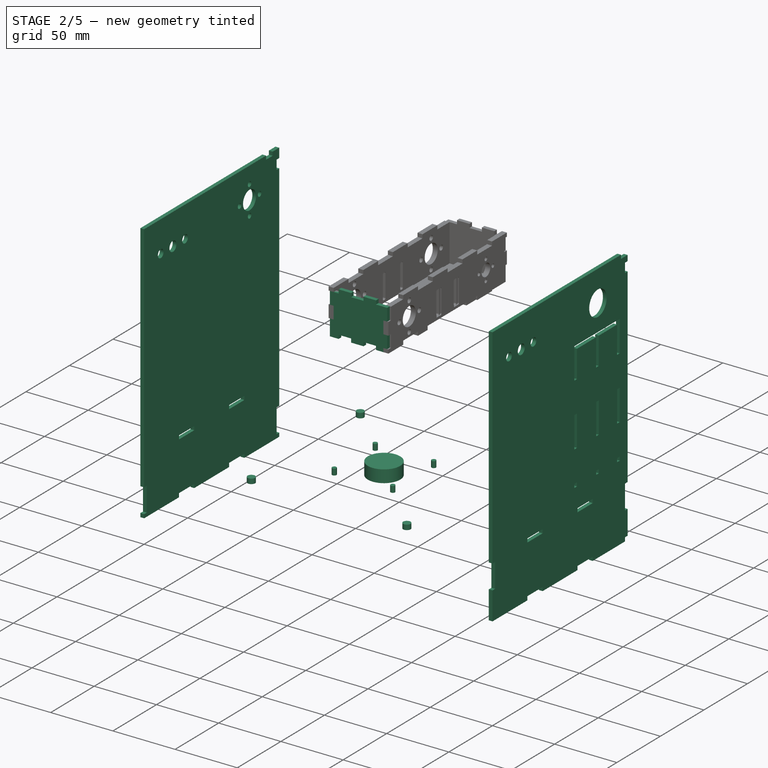
[diagram: stage 2 of 5 — iso view after this stage's code; geometry added in this stage tinted green]
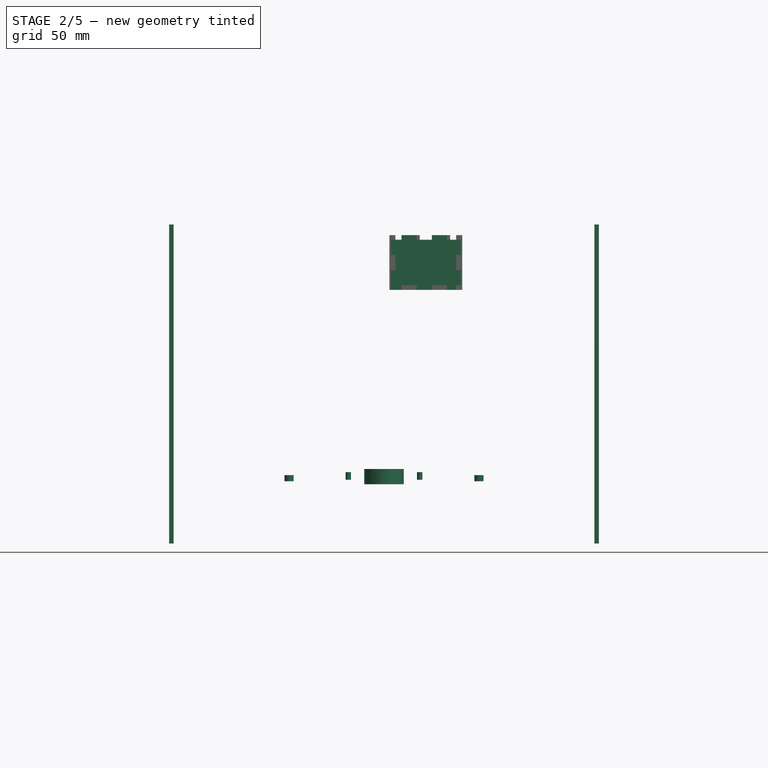
[diagram: stage 2 of 5 — front view after this stage's code; geometry added in this stage tinted green]
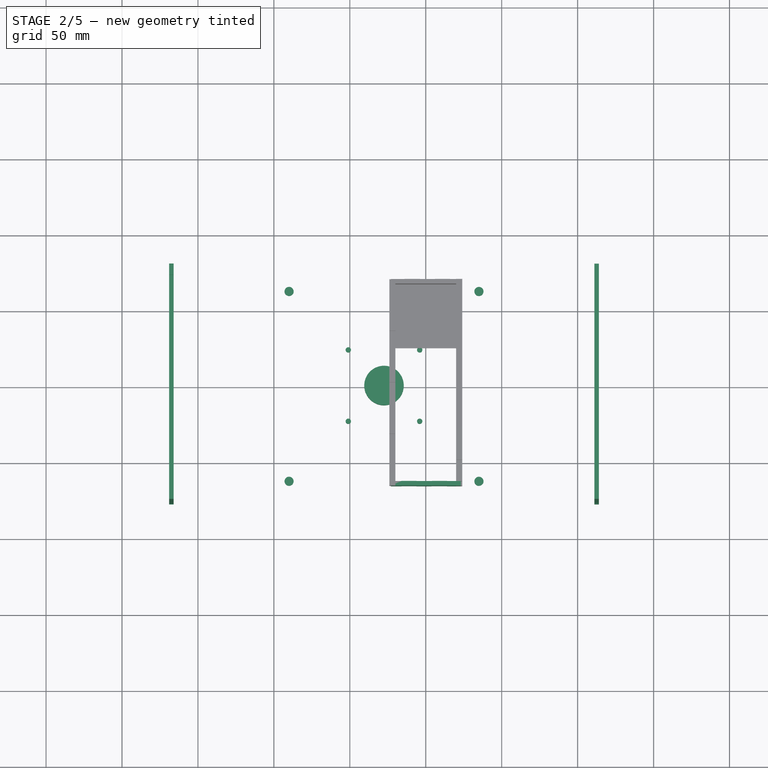
[diagram: stage 2 of 5 — top view after this stage's code; geometry added in this stage tinted green]
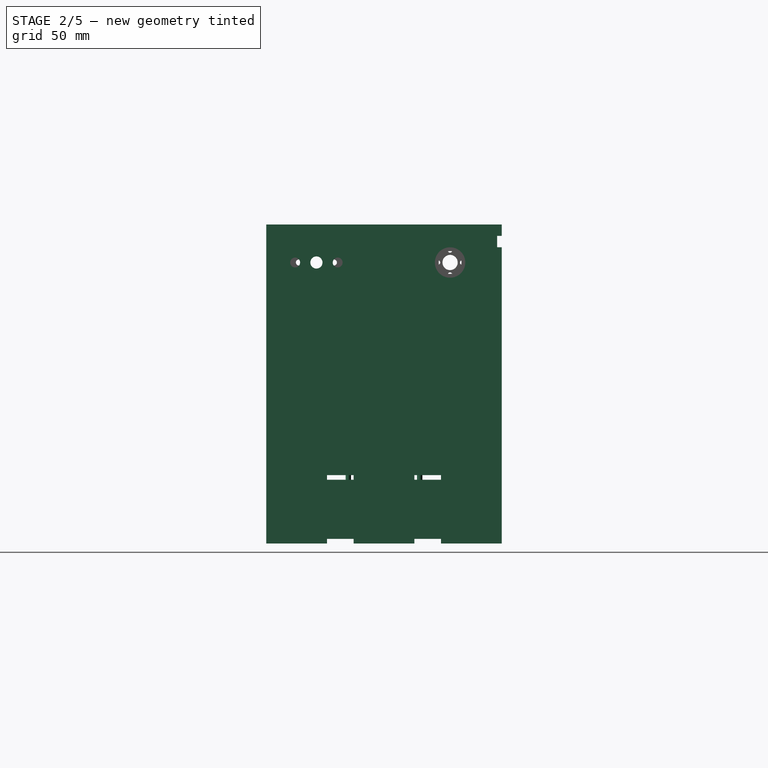
[diagram: stage 2 of 5 — right view after this stage's code; geometry added in this stage tinted green]
FEATURE [Part::Box] Box006  label="Carraige side panel"
  Height = 30
  Length = 46
  Placement = pos=(-23,-68,55) rot=(0,0,1;0rad)
  Width = 3
FEATURE [Part::Box] Box011  label="End plate"
  Height = 210
  Length = 3
  Placement = pos=(111,-77,-115) rot=(0,0,1;0rad)
  Width = 155
FEATURE [Part::Box] Box012  label="End plate001"
  Height = 210
  Length = 3
  Placement = pos=(-169,-77,-115) rot=(0,0,1;0rad)
  Width = 155
FEATURE [Part::Cylinder] Cylinder058  label="Cylinder086"
  Angle = 360
  Height = 4
  Placement = pos=(35,62.5,-30) rot=(0,0,1;0rad)
  Radius = 3
FEATURE [Part::Cylinder] Cylinder059  label="Cylinder087"
  Angle = 360
  Height = 4
  Placement = pos=(35,-62.5,-30) rot=(0,0,1;0rad)
  Radius = 3
FEATURE [Part::Cylinder] Cylinder060  label="Cylinder088"
  Angle = 360
  Height = 4
  Placement = pos=(-90,62.5,-30) rot=(0,0,1;0rad)
  Radius = 3
FEATURE [Part::Cylinder] Cylinder061  label="Cylinder089"
  Angle = 360
  Height = 4
  Placement = pos=(-90,-62.5,-30) rot=(0,0,1;0rad)
  Radius = 3
FEATURE [Part::Part2DObjectPython] Rectangle058  # Draft 2D object (typed FeaturePython)
  ChamferSize = 0
  Columns = 1
  FilletRadius = 0
  Height = -3
  Length = -6
  MakeFace = true
  Placement = pos=(20,-68,55) rot=(1,0,0;1.5708rad)
  Rows = 1
FEATURE [Part::Part2DObjectPython] Rectangle059  # Draft 2D object (typed FeaturePython)
  ChamferSize = 0
  Columns = 1
  FilletRadius = 0
  Height = -3
  Length = -10
  MakeFace = true
  Placement = pos=(14,-68,55) rot=(1,0,0;1.5708rad)
  Rows = 1
FEATURE [Part::Part2DObjectPython] Rectangle060  # Draft 2D object (typed FeaturePython)
  ChamferSize = 0
  Columns = 1
  FilletRadius = 0
  Height = -3
  Length = -10
  MakeFace = true
  Placement = pos=(4,-68,55) rot=(1,0,0;1.5708rad)
  Rows = 1
FEATURE [Part::Part2DObjectPython] Rectangle061  # Draft 2D object (typed FeaturePython)
  ChamferSize = 0
  Columns = 1
  FilletRadius = 0
  Height = -3
  Length = -10
  MakeFace = true
  Placement = pos=(-6,-68,55) rot=(1,0,0;1.5708rad)
  Rows = 1
FEATURE [Part::Part2DObjectPython] Rectangle062  # Draft 2D object (typed FeaturePython)
  ChamferSize = 0
  Columns = 1
  FilletRadius = 0
  Height = -3
  Length = -7
  MakeFace = true
  Placement = pos=(-16,-68,55) rot=(1,0,0;1.5708rad)
  Rows = 1
FEATURE [Part::Extrusion] Extrude068
  Base = -> Rectangle058
  Dir = (0,3,0)
  Solid = false
FEATURE [Part::Extrusion] Extrude070
  Base = -> Rectangle060
  Dir = (0,3,0)
  Solid = false
FEATURE [Part::Extrusion] Extrude072
  Base = -> Rectangle062
  Dir = (0,3,0)
  Solid = false
FEATURE [Part::MultiFuse] Fusion054  label="Finger joints aa"
  Shapes = -> [Extrude068,Extrude072,Extrude070]
FEATURE [Part::Part2DObjectPython] Rectangle066  # Draft 2D object (typed FeaturePython)
  ChamferSize = 0
  Columns = 1
  FilletRadius = 0
  Height = -3
  Length = -10
  MakeFace = true
  Placement = pos=(14,-68,55) rot=(1,0,0;1.5708rad)
  Rows = 1
FEATURE [Part::Part2DObjectPython] Rectangle067  # Draft 2D object (typed FeaturePython)
  ChamferSize = 0
  Columns = 1
  FilletRadius = 0
  Height = -3
  Length = -10
  MakeFace = true
  Placement = pos=(-6,-68,55) rot=(1,0,0;1.5708rad)
  Rows = 1
FEATURE [Part::Extrusion] Extrude076
  Base = -> Rectangle066
  Dir = (0,3,0)
  Solid = false
FEATURE [Part::Extrusion] Extrude077  label="Finger joints bb002"
  Base = -> Rectangle067
  Dir = (0,3,0)
  Solid = false
FEATURE [Part::MultiFuse] Fusion057  label="Finger joints bb003"
  Placement = pos=(0,0,33) rot=(0,0,1;0rad)
  Shapes = -> [Extrude076,Extrude077]
FEATURE [Part::MultiFuse] Fusion059  label="Carriage side panel with top and bottom tabs"
  Shapes = -> [Fusion057,Fusion054,Box006]
FEATURE [Part::Cylinder] Cylinder121  label="Cylinder153"
  Angle = 360
  Height = 5
  Placement = pos=(51.5056,-24.5,-90) rot=(0,0,1;0rad)
  Radius = 1.75
FEATURE [Part::Box] Box035  label="NEMA platform top"
  Height = 3
  Length = 63
  Placement = pos=(111,17,46) rot=(0,0,1;0rad)
  Width = 52
FEATURE [Part::Box] Box037  label="Cube018"
  Height = 103
  Length = 63
  Placement = pos=(111,17,-54) rot=(0,0,1;0rad)
  Width = 3
FEATURE [Part::Part2DObjectPython] DWire  # Draft 2D object (typed FeaturePython)
  ChamferSize = 0
  Closed = true
  FilletRadius = 0
  Length = 273.805
  MakeFace = true
  Placement = pos=(1,0,0) rot=(0,0,1;0rad)
  Points = (3) [(173.979,17,44.4573),(114.042,17,-54.1463),(173.993,17,-54.0051)]
  Subdivisions = 0
FEATURE [Part::Part2DObjectPython] DWire006  # Draft 2D object (typed FeaturePython)
  ChamferSize = 3
  Closed = true
  FilletRadius = 0
  Length = 162.685
  MakeFace = true
  Points = (4) [(158.708,17,37.2925),(123.654,17,37.2925),(123.654,17,-21.6678),(158.767,17,37.2757)]
  Subdivisions = 0
FEATURE [Part::Extrusion] Extrude120
  Base = -> DWire
  Dir = (0,3,0)
  Solid = true
FEATURE [Part::Extrusion] Extrude121
  Base = -> DWire006
  Dir = (0,3,0)
  Solid = true
FEATURE [Part::MultiFuse] Fusion064003
  Shapes = -> [Extrude121,Extrude120]
FEATURE [Part::Cut] Cut035004  label="NEMA platform support 1"
  Base = -> Box037
  Tool = -> Fusion064003
FEATURE [Part::Box] Box042  label="Cube021"
  Height = 45
  Length = 100
  Placement = pos=(14,-77,-115) rot=(0,0,1;0rad)
  Width = 3
FEATURE [Part::Part2DObjectPython] Rectangle110  # Draft 2D object (typed FeaturePython)
  ChamferSize = 0
  Columns = 1
  FilletRadius = 0
  Height = 25
  Length = -3
  MakeFace = true
  Placement = pos=(111,-77,49) rot=(0,-0.705662,0.708549;3.14159rad)
  Rows = 1
  Support = -> Box011
FEATURE [Part::Part2DObjectPython] Rectangle111  # Draft 2D object (typed FeaturePython)
  ChamferSize = 0
  Columns = 1
  FilletRadius = 0
  Height = 25
  Length = -3
  MakeFace = true
  Placement = pos=(111,-77,24) rot=(0,0.707107,-0.707107;3.14159rad)
  Rows = 1
FEATURE [Part::Part2DObjectPython] Rectangle112  # Draft 2D object (typed FeaturePython)
  ChamferSize = 0
  Columns = 1
  FilletRadius = 0
  Height = 25
  Length = -3
  MakeFace = true
  Placement = pos=(111,-77,-1) rot=(0,0.707107,-0.707107;3.14159rad)
  Rows = 1
FEATURE [Part::Part2DObjectPython] Rectangle113  # Draft 2D object (typed FeaturePython)
  ChamferSize = 0
  Columns = 1
  FilletRadius = 0
  Height = 25
  Length = -3
  MakeFace = true
  Placement = pos=(111,-77,-26) rot=(0,0.707107,-0.707107;3.14159rad)
  Rows = 1
FEATURE [Part::Part2DObjectPython] Rectangle114  # Draft 2D object (typed FeaturePython)
  ChamferSize = 0
  Columns = 1
  FilletRadius = 0
  Height = 3
  Length = 3
  MakeFace = true
  Placement = pos=(114,-77,-51) rot=(0,0.707107,-0.707107;3.14159rad)
  Rows = 1
FEATURE [Part::Part2DObjectPython] Rectangle115  # Draft 2D object (typed FeaturePython)
  ChamferSize = 0
  Columns = 1
  FilletRadius = 0
  Height = 3
  Length = 15
  MakeFace = true
  Placement = pos=(174,-77,49) rot=(0,0.707107,-0.707107;3.14159rad)
  Rows = 1
  Support = -> Box035
FEATURE [Part::Part2DObjectPython] Rectangle116  # Draft 2D object (typed FeaturePython)
  ChamferSize = 0
  Columns = 1
  FilletRadius = 0
  Height = 3
  Length = 15
  MakeFace = true
  Placement = pos=(159,-77,49) rot=(0,0.707107,-0.707107;3.14159rad)
  Rows = 1
FEATURE [Part::Part2DObjectPython] Rectangle117  # Draft 2D object (typed FeaturePython)
  ChamferSize = 0
  Columns = 1
  FilletRadius = 0
  Height = 3
  Length = 15
  MakeFace = true
  Placement = pos=(144,-77,49) rot=(0,0.707107,-0.707107;3.14159rad)
  Rows = 1
  Support = -> Cut035004
FEATURE [Part::Part2DObjectPython] Rectangle118  # Draft 2D object (typed FeaturePython)
  ChamferSize = 0
  Columns = 1
  FilletRadius = 0
  Height = 3
  Length = 15
  MakeFace = true
  Placement = pos=(129,-77,49) rot=(0,0.707107,-0.707107;3.14159rad)
  Rows = 1
FEATURE [Part::Extrusion] Extrude126
  Base = -> Rectangle110
  Dir = (0,3,0)
  Placement = pos=(0,94,0) rot=(0,0,1;0rad)
  Solid = false
FEATURE [Part::Extrusion] Extrude128
  Base = -> Rectangle112
  Dir = (0,3,0)
  Placement = pos=(0,94,0) rot=(0,0,1;0rad)
  Solid = false
FEATURE [Part::Extrusion] Extrude130
  Base = -> Rectangle114
  Dir = (0,3,0)
  Placement = pos=(0,94,0) rot=(0,0,1;0rad)
  Solid = false
FEATURE [Part::Extrusion] Extrude131
  Base = -> Rectangle115
  Dir = (0,3,0)
  Placement = pos=(0,94,0) rot=(0,0,1;0rad)
  Solid = false
FEATURE [Part::Extrusion] Extrude133
  Base = -> Rectangle117
  Dir = (0,3,0)
  Placement = pos=(0,94,0) rot=(0,0,1;0rad)
  Solid = false
FEATURE [Part::MultiFuse] Fusion064011
  Shapes = -> [Extrude126,Extrude130,Extrude128,Extrude131,Extrude133]
FEATURE [Part::MultiFuse] Fusion064012
  Placement = pos=(0,25,0) rot=(0,0,1;0rad)
  Shapes = -> [Extrude126,Extrude130,Extrude128,Extrude131,Extrude133]
FEATURE [Part::MultiFuse] Fusion064013
  Placement = pos=(0,49,0) rot=(0,0,1;0rad)
  Shapes = -> [Extrude126,Extrude130,Extrude128,Extrude131,Extrude133]
FEATURE [Part::MultiFuse] Fusion064020
  Shapes = -> [Fusion064011,Fusion064012,Fusion064013]
FEATURE [Part::MultiFuse] Fusion064022  label="Joints for NEMA platform supports"
  Shapes = -> [Fusion064011,Fusion064012,Fusion064013]
FEATURE [Part::Extrusion] Extrude151
  Base = -> Rectangle127
  Dir = (0,3,0)
  Placement = pos=(0,0,-42) rot=(0,0,1;0rad)
  Solid = true
FEATURE [Part::Extrusion] Extrude154
  Base = -> Rectangle129
  Dir = (0,3,0)
  Placement = pos=(0,0,-42) rot=(0,0,1;0rad)
  Solid = true
FEATURE [Part::Extrusion] Extrude167
  Base = -> Rectangle132
  Dir = (0,3,0)
  Placement = pos=(0,0,19.5) rot=(0,0,1;0rad)
  Solid = true
FEATURE [Part::Extrusion] Extrude169
  Base = -> Rectangle132
  Dir = (0,3,0)
  Placement = pos=(-280,0,0) rot=(0,0,1;0rad)
  Solid = true
FEATURE [Part::Cut] Cut035019  label="End plate 002"
  Base = -> Box011
  Tool = -> Extrude167
FEATURE [Part::Extrusion] Extrude172
  Base = -> Rectangle129
  Dir = (0,3,0)
  Placement = pos=(-208,0,0) rot=(0,0,1;0rad)
  Solid = true
FEATURE [Part::MultiFuse] Fusion064031
  Shapes = -> [Extrude169,Extrude172]
FEATURE [Part::Cut] Cut035021  label="End plate 001"
  Base = -> Box012
  Tool = -> Fusion064031
FEATURE [Part::MultiFuse] Fusion064037
  Placement = pos=(0,152,0) rot=(0,0,1;0rad)
  Shapes = -> [Extrude169,Extrude172]
FEATURE [Part::Extrusion] Extrude173
  Base = -> Rectangle132
  Dir = (0,3,0)
  Placement = pos=(0,152,19.5) rot=(0,0,1;0rad)
  Solid = true
FEATURE [Part::Cut] Cut035024  label="End plate 003"
  Base = -> Cut035021
  Tool = -> Fusion064037
FEATURE [Part::Cut] Cut035025
  Base = -> Cut035019
  Tool = -> Extrude173
FEATURE [Part::MultiFuse] Fusion064039
  Placement = pos=(0,152,0) rot=(0,0,1;0rad)
  Shapes = -> [Extrude154,Extrude151]
FEATURE [Part::Cut] Cut035026  label="End plate 004"
  Base = -> Cut035025
  Tool = -> Fusion064039
FEATURE [Part::Extrusion] Extrude177
  Base = -> Rectangle136
  Dir = (3,0,0)
  Solid = false
FEATURE [Part::Extrusion] Extrude178
  Base = -> Rectangle137
  Dir = (3,0,0)
  Solid = false
FEATURE [Part::Extrusion] Extrude179
  Base = -> Rectangle138
  Dir = (3,0,0)
  Solid = false
FEATURE [Part::MultiFuse] Fusion064042
  Placement = pos=(-3,0,0) rot=(0,0,1;0rad)
  Shapes = -> [Extrude179,Extrude178,Extrude177]
FEATURE [Part::Part2DObjectPython] Rectangle139  # Draft 2D object (typed FeaturePython)
  ChamferSize = 0
  Columns = 1
  FilletRadius = 0
  Height = -3
  Length = 17.5
  MakeFace = true
  Placement = pos=(114,-37,-70) rot=(0.57735,0.57735,0.57735;2.0944rad)
  Rows = 1
  Support = -> Cut035026
FEATURE [Part::Part2DObjectPython] Rectangle140  # Draft 2D object (typed FeaturePython)
  ChamferSize = 0
  Columns = 1
  FilletRadius = 0
  Height = -3
  Length = 17.5
  MakeFace = true
  Placement = pos=(114,20.5,-70) rot=(0.57735,0.57735,0.57735;2.0944rad)
  Rows = 1
  Support = -> Cut035026
FEATURE [Part::Part2DObjectPython] Rectangle141  # Draft 2D object (typed FeaturePython)
  ChamferSize = 0
  Columns = 1
  FilletRadius = 0
  Height = -3
  Length = 17.5
  MakeFace = true
  Placement = pos=(114,20.5,-112) rot=(0.57735,0.57735,0.57735;2.0944rad)
  Rows = 1
  Support = -> Cut035026
FEATURE [Part::Part2DObjectPython] Rectangle142  # Draft 2D object (typed FeaturePython)
  ChamferSize = 0
  Columns = 1
  FilletRadius = 0
  Height = -3
  Length = 17.5
  MakeFace = true
  Placement = pos=(114,-37,-112) rot=(0.57735,0.57735,0.57735;2.0944rad)
  Rows = 1
  Support = -> Cut035026
FEATURE [Part::Extrusion] Extrude180
  Base = -> Rectangle139
  Dir = (-3,0,0)
  Solid = false
FEATURE [Part::Extrusion] Extrude181
  Base = -> Rectangle140
  Dir = (-3,0,0)
  Solid = false
FEATURE [Part::Extrusion] Extrude182
  Base = -> Rectangle141
  Dir = (-3,0,0)
  Solid = false
FEATURE [Part::Extrusion] Extrude183
  Base = -> Rectangle142
  Dir = (-3,0,0)
  Solid = false
FEATURE [Part::MultiFuse] Fusion064044
  Shapes = -> [Extrude180,Extrude181,Extrude183,Extrude182]
FEATURE [Part::MultiFuse] Fusion064045
  Placement = pos=(-280,0,0) rot=(0,0,1;0rad)
  Shapes = -> [Extrude180,Extrude181,Extrude183,Extrude182]
FEATURE [Part::Cut] Cut035031  label="End plate 006"
  Base = -> Cut035026
  Tool = -> Fusion064044
FEATURE [Part::Cut] Cut035032  label="End plate 005"
  Base = -> Cut035024
  Tool = -> Fusion064045
FEATURE [Part::MultiFuse] Fusion064046
  Placement = pos=(-283,0,0) rot=(0,0,1;0rad)
  Shapes = -> [Extrude179,Extrude178,Extrude177]
FEATURE [Part::Extrusion] Extrude197
  Base = -> Rectangle152
  Dir = (-3,0,0)
  Solid = true
FEATURE [Part::Extrusion] Extrude199
  Base = -> Rectangle154
  Dir = (-3,0,0)
  Solid = true
FEATURE [Part::MultiFuse] Fusion064050
  Shapes = -> [Extrude199,Extrude197]
FEATURE [Part::Cut] Cut035037  label="End plate 008"
  Base = -> Cut035031
  Tool = -> Fusion064050
FEATURE [Part::Extrusion] Extrude204
  Base = -> Rectangle155
  Dir = (3,0,0)
  Solid = false
FEATURE [Part::Extrusion] Extrude205
  Base = -> Rectangle159
  Dir = (3,0,0)
  Solid = false
FEATURE [Part::MultiFuse] Fusion064057
  Shapes = -> [Extrude204,Extrude205]
FEATURE [Part::Cut] Cut035042  label="End plate 007"
  Base = -> Cut035032
  Tool = -> Fusion064057
FEATURE [Part::Cut] Cut035047  label="End plate 010"
  Base = -> Cut035037
  Tool = -> Fusion064022
FEATURE [Part::Cut] Cut035048  label="NEMA platform top with joints002"
  Base = -> Box035
  Tool = -> Fusion064020
FEATURE [Part::Cut] Cut035049  label="End plate 012"
  Base = -> Cut035047
  Tool = -> Cut035048
FEATURE [Part::Cylinder] Cylinder123  label="Cylinder154"
  Angle = 360
  Height = 10
  Placement = pos=(-27.5,0.5,-76) rot=(0,0,1;0rad)
  Radius = 13
FEATURE [Part::FeaturePython] Array016  label="Mounting Holes001"  # Draft array (typed FeaturePython)
  Angle = 360
  ArrayType = 1
  Axis = (0,0,1)
  Base = -> Cylinder121
  Fuse = false
  NumberPolar = 4
  NumberX = 2
  NumberY = 2
  NumberZ = 1
  Placement = pos=(-55.5,1.5,17) rot=(0,0,1;0rad)
FEATURE [Part::MultiFuse] Fusion064059  label="lower plate screw holes001"
  Placement = pos=(0,0,-44) rot=(0,0,1;0rad)
  Shapes = -> [Cylinder061,Cylinder058,Cylinder059,Cylinder060]
FEATURE [Part::Cylinder] Cylinder124  label="Cylinder155"
  Angle = 360
  Height = 10
  Placement = pos=(-173,-44,70) rot=(0,1,0;1.5708rad)
  Radius = 4
FEATURE [Part::Cylinder] Cylinder125  label="Cylinder156"
  Angle = 360
  Height = 10
  Placement = pos=(-172,-30,70) rot=(0,1,0;1.5708rad)
  Radius = 3.25
FEATURE [Part::Cylinder] Cylinder126  label="Cylinder157"
  Angle = 360
  Height = 10
  Placement = pos=(-172,-58,70) rot=(0,1,0;1.5708rad)
  Radius = 3.25
FEATURE [Part::MultiFuse] Fusion064060
  Shapes = -> [Cylinder124,Cylinder125,Cylinder126]
FEATURE [Part::MultiFuse] Fusion064061
  Placement = pos=(279,0,0) rot=(0,0,1;0rad)
  Shapes = -> [Cylinder124,Cylinder125,Cylinder126]
FEATURE [Part::Cylinder] Cylinder127  label="Cylinder158"
  Angle = 360
  Height = 10
  Placement = pos=(-175,44,70) rot=(0,1,0;1.5708rad)
  Radius = 7.5
FEATURE [Part::Cylinder] Cylinder128  label="Cylinder159"
  Angle = 360
  Height = 10
  Placement = pos=(-173,44,81.5) rot=(0,1,0;1.5708rad)
  Radius = 2
FEATURE [Part::Cylinder] Cylinder129  label="Cylinder160"
  Angle = 360
  Height = 10
  Placement = pos=(-173,44,58.5) rot=(0,1,0;1.5708rad)
  Radius = 2
FEATURE [Part::Cylinder] Cylinder130  label="Cylinder161"
  Angle = 360
  Height = 10
  Placement = pos=(-173,55.5,70) rot=(0,1,0;1.5708rad)
  Radius = 2
FEATURE [Part::Cylinder] Cylinder131  label="Cylinder162"
  Angle = 360
  Height = 10
  Placement = pos=(-173,32.5,70) rot=(0,1,0;1.5708rad)
  Radius = 2
FEATURE [Part::MultiFuse] Fusion064062
  Shapes = -> [Cylinder127,Cylinder128,Cylinder131,Cylinder130,Cylinder129]
FEATURE [Part::MultiFuse] Fusion064063
  Shapes = -> [Fusion064060,Fusion064062]
FEATURE [Part::Cut] Cut035053  label="End plate 009"
  Base = -> Cut035042
  Tool = -> Fusion064063
FEATURE [Part::Cylinder] Cylinder132  label="Cylinder163"
  Angle = 360
  Height = 10
  Placement = pos=(109,44,70) rot=(0,1,0;1.5708rad)
  Radius = 10
FEATURE [Part::MultiFuse] Fusion064064
  Shapes = -> [Fusion064061,Cylinder132]
FEATURE [Part::Cut] Cut035054  label="End plate 014"
  Base = -> Cut035049
  Tool = -> Fusion064064
FEATURE [Part::Cut] Cut035055  label="Carriage side panel with top and bottom tabs004"
  Base = -> Fusion059
  Tool = -> Fusion064065
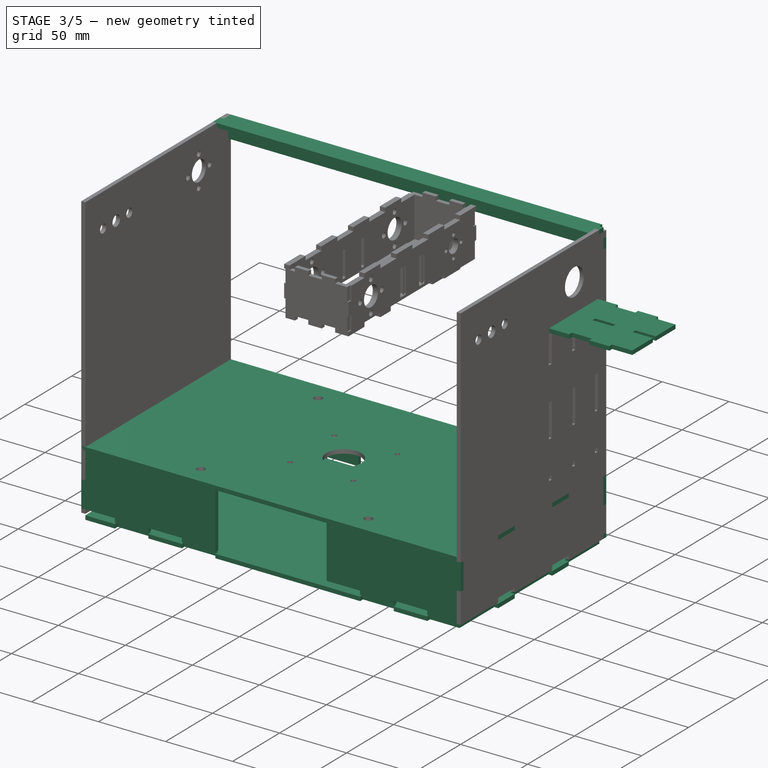
[diagram: stage 3 of 5 — iso view after this stage's code; geometry added in this stage tinted green]
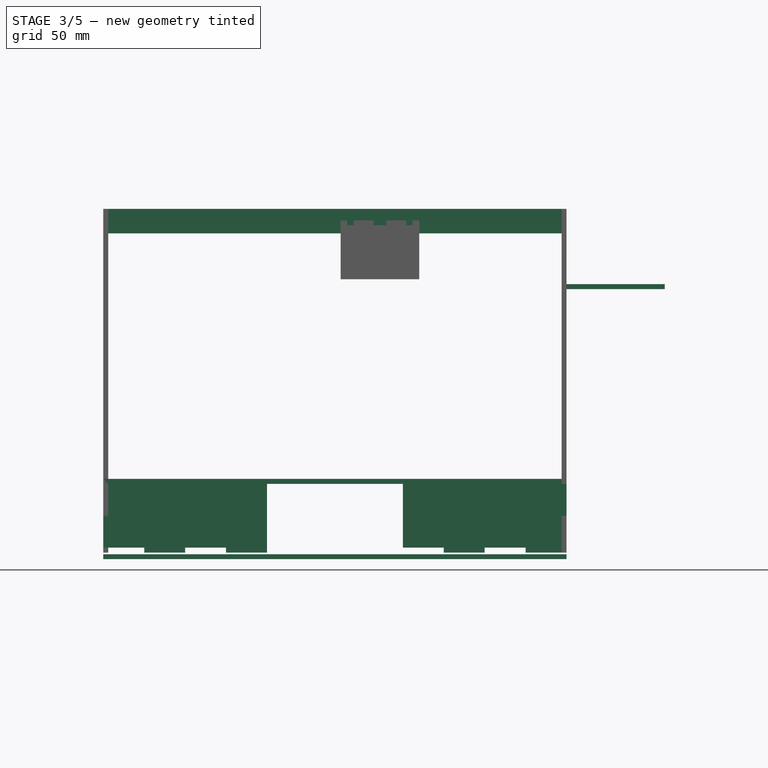
[diagram: stage 3 of 5 — front view after this stage's code; geometry added in this stage tinted green]
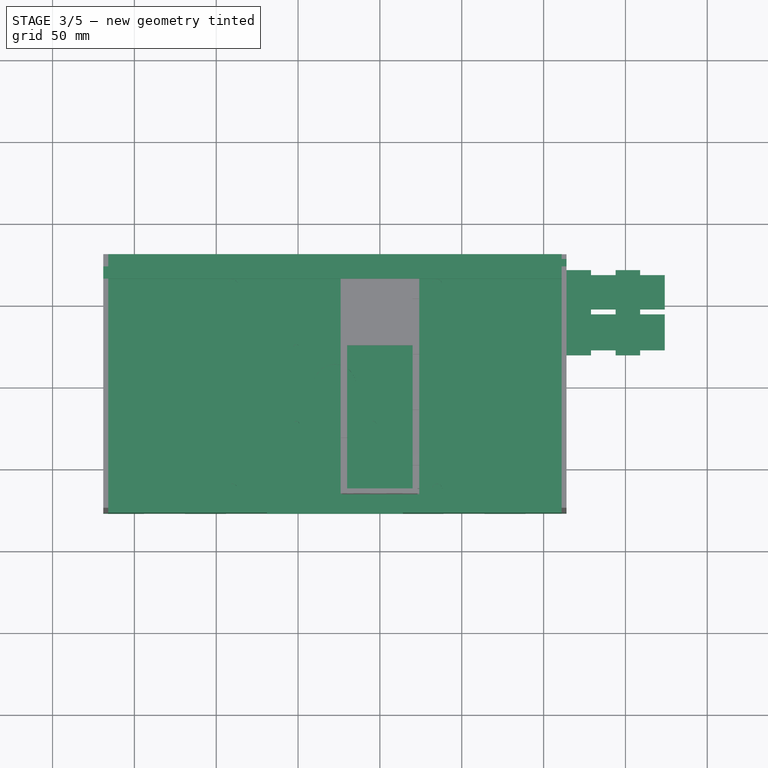
[diagram: stage 3 of 5 — top view after this stage's code; geometry added in this stage tinted green]
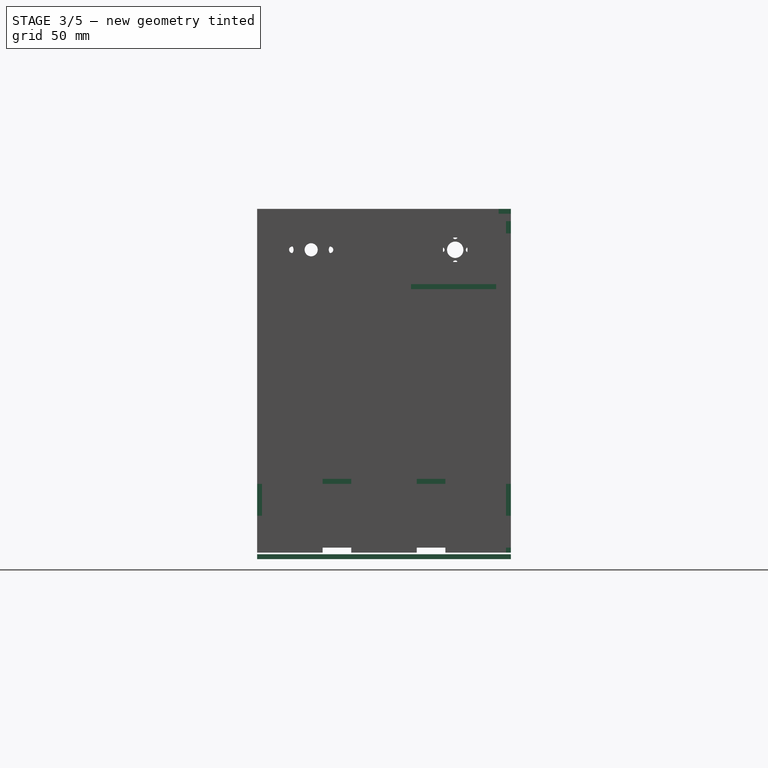
[diagram: stage 3 of 5 — right view after this stage's code; geometry added in this stage tinted green]
FEATURE [Part::Box] Box034  label="Base upper"
  Height = 3
  Length = 283
  Placement = pos=(-169,-77,-73) rot=(0,0,1;0rad)
  Width = 155
FEATURE [Part::Box] Box036  label="Base lower"
  Height = 3
  Length = 283
  Placement = pos=(-169,-77,-115) rot=(0,0,1;0rad)
  Width = 155
FEATURE [Part::Box] Box040  label="Upper structural rail 1"
  Height = 15
  Length = 283
  Placement = pos=(-169,75,80) rot=(0,0,1;0rad)
  Width = 3
FEATURE [Part::Box] Box041  label="Upper structural rail 2"
  Height = 3
  Length = 283
  Placement = pos=(-169,63,92) rot=(0,0,1;0rad)
  Width = 15
FEATURE [Part::Box] Box043  label="Cube022"
  Height = 45
  Length = 100
  Placement = pos=(-169,75,-115) rot=(0,0,1;0rad)
  Width = 3
FEATURE [Part::Box] Box044  label="Cube023"
  Height = 45
  Length = 100
  Placement = pos=(-169,-77,-115) rot=(0,0,1;0rad)
  Width = 3
FEATURE [Part::Box] Box045  label="Cube024"
  Height = 45
  Length = 100
  Placement = pos=(14,75,-115) rot=(0,0,1;0rad)
  Width = 3
FEATURE [Part::Part2DObjectPython] Rectangle123  # Draft 2D object (typed FeaturePython)
  ChamferSize = 0
  Columns = 1
  FilletRadius = 0
  Height = 25
  Length = -3
  MakeFace = true
  Placement = pos=(111,-77,24) rot=(0,0.707107,-0.707107;3.14159rad)
  Rows = 1
FEATURE [Part::Part2DObjectPython] Rectangle124  # Draft 2D object (typed FeaturePython)
  ChamferSize = 0
  Columns = 1
  FilletRadius = 0
  Height = 25
  Length = -3
  MakeFace = true
  Placement = pos=(111,-77,-26) rot=(0,0.707107,-0.707107;3.14159rad)
  Rows = 1
FEATURE [Part::Part2DObjectPython] Rectangle125  # Draft 2D object (typed FeaturePython)
  ChamferSize = 0
  Columns = 1
  FilletRadius = 0
  Height = 3
  Length = 15
  MakeFace = true
  Placement = pos=(159,-77,49) rot=(0,0.707107,-0.707107;3.14159rad)
  Rows = 1
FEATURE [Part::Part2DObjectPython] Rectangle126  # Draft 2D object (typed FeaturePython)
  ChamferSize = 0
  Columns = 1
  FilletRadius = 0
  Height = 3
  Length = 15
  MakeFace = true
  Placement = pos=(129,-77,49) rot=(0,0.707107,-0.707107;3.14159rad)
  Rows = 1
FEATURE [Part::Extrusion] Extrude143
  Base = -> Rectangle123
  Dir = (0,3,0)
  Placement = pos=(0,94,0) rot=(0,0,1;0rad)
  Solid = false
FEATURE [Part::Extrusion] Extrude144
  Base = -> Rectangle124
  Dir = (0,3,0)
  Placement = pos=(0,94,0) rot=(0,0,1;0rad)
  Solid = false
FEATURE [Part::Extrusion] Extrude145
  Base = -> Rectangle125
  Dir = (0,3,0)
  Placement = pos=(0,94,0) rot=(0,0,1;0rad)
  Solid = false
FEATURE [Part::Extrusion] Extrude146
  Base = -> Rectangle126
  Dir = (0,3,0)
  Placement = pos=(0,94,0) rot=(0,0,1;0rad)
  Solid = false
FEATURE [Part::MultiFuse] Fusion064010
  Shapes = -> [Extrude143,Extrude144,Extrude145,Extrude146]
FEATURE [Part::Cut] Cut035012  label="NEMA platform top with joints"
  Base = -> Box035
  Tool = -> Fusion064020
FEATURE [Part::Part2DObjectPython] Rectangle127 .. Rectangle130  x4 (patterned run collapsed; names and placements below)
  ChamferSize = 0
  Columns = 1
  FilletRadius = 0
  Height = 3
  Length = 25
  MakeFace = true
  Rows = 1
  Support = -> Box042
  placements: 4 in arithmetic series — first pos=(114,-77,-70) rot=(0,0.707107,-0.707107;3.14159rad), step (-25,0,0), last pos=(39,-77,-70) rot=(0,0.707107,-0.707107;3.14159rad)
FEATURE [Part::Extrusion] Extrude147
  Base = -> Rectangle127
  Dir = (0,3,0)
  Solid = true
FEATURE [Part::Extrusion] Extrude148
  Base = -> Rectangle128
  Dir = (0,3,0)
  Solid = true
FEATURE [Part::Extrusion] Extrude149
  Base = -> Rectangle129
  Dir = (0,3,0)
  Solid = true
FEATURE [Part::Extrusion] Extrude150
  Base = -> Rectangle130
  Dir = (0,3,0)
  Solid = true
FEATURE [Part::Extrusion] Extrude152
  Base = -> Rectangle130
  Dir = (0,3,0)
  Placement = pos=(0,0,-42) rot=(0,0,1;0rad)
  Solid = true
FEATURE [Part::Extrusion] Extrude153
  Base = -> Rectangle128
  Dir = (0,3,0)
  Placement = pos=(0,0,-42) rot=(0,0,1;0rad)
  Solid = true
FEATURE [Part::Extrusion] Extrude155
  Base = -> Rectangle127
  Dir = (0,3,0)
  Placement = pos=(-183,0,0) rot=(0,0,1;0rad)
  Solid = true
FEATURE [Part::Extrusion] Extrude156
  Base = -> Rectangle130
  Dir = (0,3,0)
  Placement = pos=(-133,0,0) rot=(0,0,1;0rad)
  Solid = true
FEATURE [Part::Extrusion] Extrude157
  Base = -> Rectangle128
  Dir = (0,3,0)
  Placement = pos=(-208,0,0) rot=(0,0,1;0rad)
  Solid = true
FEATURE [Part::Extrusion] Extrude158
  Base = -> Rectangle129
  Dir = (0,3,0)
  Placement = pos=(-208,0,0) rot=(0,0,1;0rad)
  Solid = true
FEATURE [Part::Extrusion] Extrude159
  Base = -> Rectangle129
  Dir = (0,3,0)
  Placement = pos=(-133,0,-42) rot=(0,0,1;0rad)
  Solid = true
FEATURE [Part::Extrusion] Extrude160
  Base = -> Rectangle127
  Dir = (0,3,0)
  Placement = pos=(-208,0,-42) rot=(0,0,1;0rad)
  Solid = true
FEATURE [Part::Extrusion] Extrude161
  Base = -> Rectangle128
  Dir = (0,3,0)
  Placement = pos=(-208,0,-42) rot=(0,0,1;0rad)
  Solid = true
FEATURE [Part::Extrusion] Extrude162
  Base = -> Rectangle130
  Dir = (0,3,0)
  Placement = pos=(-183,0,-42) rot=(0,0,1;0rad)
  Solid = true
FEATURE [Part::Part2DObjectPython] Rectangle132  # Draft 2D object (typed FeaturePython)
  ChamferSize = 0
  Columns = 1
  FilletRadius = 0
  Height = 19.5
  Length = 3
  MakeFace = true
  Placement = pos=(114,-77,-92.5) rot=(0,0.707107,-0.707107;3.14159rad)
  Rows = 1
FEATURE [Part::Extrusion] Extrude166
  Base = -> Rectangle132
  Dir = (0,3,0)
  Solid = true
FEATURE [Part::Extrusion] Extrude168
  Base = -> Rectangle132
  Dir = (0,3,0)
  Placement = pos=(-280,0,19.5) rot=(0,0,1;0rad)
  Solid = true
FEATURE [Part::MultiFuse] Fusion064024
  Shapes = -> [Extrude149,Extrude152,Extrude153,Extrude166,Extrude147]
FEATURE [Part::Cut] Cut035013  label="Base side 1"
  Base = -> Box042
  Tool = -> Fusion064024
FEATURE [Part::MultiFuse] Fusion064025
  Shapes = -> [Extrude168,Extrude155,Extrude157,Extrude162,Extrude160]
FEATURE [Part::Cut] Cut035014  label="Base side 2"
  Base = -> Box044
  Tool = -> Fusion064025
FEATURE [Part::MultiFuse] Fusion064026
  Placement = pos=(0,152,0) rot=(0,0,1;0rad)
  Shapes = -> [Extrude149,Extrude152,Extrude153,Extrude166,Extrude147]
FEATURE [Part::MultiFuse] Fusion064027
  Placement = pos=(0,152,0) rot=(0,0,1;0rad)
  Shapes = -> [Extrude168,Extrude155,Extrude157,Extrude162,Extrude160]
FEATURE [Part::Cut] Cut035015  label="Base Side 3"
  Base = -> Box045
  Tool = -> Fusion064026
FEATURE [Part::Cut] Cut035016  label="Base side 4"
  Base = -> Box043
  Tool = -> Fusion064027
FEATURE [Part::MultiFuse] Fusion064028
  Shapes = -> [Extrude148,Extrude150]
FEATURE [Part::Cut] Cut035017
  Base = -> Box034
  Tool = -> Fusion064028
FEATURE [Part::MultiFuse] Fusion064029
  Shapes = -> [Extrude154,Extrude151]
FEATURE [Part::Cut] Cut035018
  Base = -> Box036
  Tool = -> Fusion064029
FEATURE [Part::MultiFuse] Fusion064030
  Shapes = -> [Extrude156,Extrude158]
FEATURE [Part::Cut] Cut035020  label="Base upper001"
  Base = -> Cut035017
  Tool = -> Fusion064030
FEATURE [Part::MultiFuse] Fusion064032
  Shapes = -> [Extrude159,Extrude161]
FEATURE [Part::Cut] Cut035022  label="Base lower001"
  Base = -> Cut035018
  Tool = -> Fusion064032
FEATURE [Part::MultiFuse] Fusion064033
  Placement = pos=(0,152,0) rot=(0,0,1;0rad)
  Shapes = -> [Extrude154,Extrude151]
FEATURE [Part::MultiFuse] Fusion064034
  Placement = pos=(0,152,0) rot=(0,0,1;0rad)
  Shapes = -> [Extrude159,Extrude161]
FEATURE [Part::MultiFuse] Fusion064035
  Placement = pos=(0,152,0) rot=(0,0,1;0rad)
  Shapes = -> [Extrude156,Extrude158]
FEATURE [Part::MultiFuse] Fusion064036
  Placement = pos=(0,152,0) rot=(0,0,1;0rad)
  Shapes = -> [Extrude148,Extrude150]
FEATURE [Part::MultiFuse] Fusion064038
  Shapes = -> [Fusion064036,Fusion064035]
FEATURE [Part::Cut] Cut035023  label="Baser upper"
  Base = -> Cut035020
  Tool = -> Fusion064038
FEATURE [Part::MultiFuse] Fusion064040
  Shapes = -> [Fusion064033,Fusion064034]
FEATURE [Part::Cut] Cut035027  label="Baser lower"
  Base = -> Cut035022
  Tool = -> Fusion064040
FEATURE [Part::Part2DObjectPython] Rectangle133  # Draft 2D object (typed FeaturePython)
  ChamferSize = 0
  Columns = 1
  FilletRadius = 0
  Height = -3
  Length = 40
  MakeFace = true
  Placement = pos=(114,-77,-112) rot=(0.57735,0.57735,0.57735;2.0944rad)
  Rows = 1
FEATURE [Part::Part2DObjectPython] Rectangle134  # Draft 2D object (typed FeaturePython)
  ChamferSize = 0
  Columns = 1
  FilletRadius = 0
  Height = -3
  Length = 40
  MakeFace = true
  Placement = pos=(114,38,-112) rot=(0.57735,0.57735,0.57735;2.0944rad)
  Rows = 1
FEATURE [Part::Part2DObjectPython] Rectangle135  # Draft 2D object (typed FeaturePython)
  ChamferSize = 0
  Columns = 1
  FilletRadius = 0
  Height = -3
  Length = 40
  MakeFace = true
  Placement = pos=(114,-19.5,-112) rot=(0.57735,0.57735,0.57735;2.0944rad)
  Rows = 1
FEATURE [Part::Part2DObjectPython] Rectangle136  # Draft 2D object (typed FeaturePython)
  ChamferSize = 0
  Columns = 1
  FilletRadius = 0
  Height = -3
  Length = 40
  MakeFace = true
  Placement = pos=(114,-19.5,-70) rot=(0.57735,0.57735,0.57735;2.0944rad)
  Rows = 1
FEATURE [Part::Part2DObjectPython] Rectangle137  # Draft 2D object (typed FeaturePython)
  ChamferSize = 0
  Columns = 1
  FilletRadius = 0
  Height = -3
  Length = 40
  MakeFace = true
  Placement = pos=(114,-77,-70) rot=(0.57735,0.57735,0.57735;2.0944rad)
  Rows = 1
FEATURE [Part::Part2DObjectPython] Rectangle138  # Draft 2D object (typed FeaturePython)
  ChamferSize = 0
  Columns = 1
  FilletRadius = 0
  Height = -3
  Length = 40
  MakeFace = true
  Placement = pos=(114,38,-70) rot=(0.57735,0.57735,0.57735;2.0944rad)
  Rows = 1
FEATURE [Part::Extrusion] Extrude174
  Base = -> Rectangle133
  Dir = (3,0,0)
  Solid = false
FEATURE [Part::Extrusion] Extrude175
  Base = -> Rectangle134
  Dir = (3,0,0)
  Solid = false
FEATURE [Part::Extrusion] Extrude176
  Base = -> Rectangle135
  Dir = (3,0,0)
  Solid = false
FEATURE [Part::MultiFuse] Fusion064041
  Placement = pos=(-3,0,0) rot=(0,0,1;0rad)
  Shapes = -> [Extrude174,Extrude175,Extrude176]
FEATURE [Part::MultiFuse] Fusion064043
  Placement = pos=(-3,0,0) rot=(0,0,1;0rad)
  Shapes = -> [Extrude174,Extrude175,Extrude176]
FEATURE [Part::Cut] Cut035028  label="Base Side 1"
  Base = -> Cut035013
  Tool = -> Fusion064043
FEATURE [Part::Cut] Cut035029  label="Base lower002"
  Base = -> Cut035027
  Tool = -> Fusion064041
FEATURE [Part::Cut] Cut035030  label="Base Upper"
  Base = -> Cut035023
  Tool = -> Fusion064042
FEATURE [Part::MultiFuse] Fusion064047
  Placement = pos=(-283,0,0) rot=(0,0,1;0rad)
  Shapes = -> [Extrude174,Extrude175,Extrude176]
FEATURE [Part::Cut] Cut035033  label="Base lower003"
  Base = -> Cut035029
  Placement = pos=(0,0,-4) rot=(0,0,1;0rad)
  Tool = -> Fusion064047
FEATURE [Part::Cut] Cut035034  label="Base upper002"
  Base = -> Cut035030
  Tool = -> Fusion064046
FEATURE [Part::Part2DObjectPython] Rectangle143  # Draft 2D object (typed FeaturePython)
  ChamferSize = 0
  Columns = 1
  FilletRadius = 0
  Height = -3
  Length = 35
  MakeFace = true
  Placement = pos=(79,78,95) rot=(0,0.707107,0.707107;3.14159rad)
  Rows = 1
  Support = -> Box040
FEATURE [Part::Part2DObjectPython] Rectangle144  # Draft 2D object (typed FeaturePython)
  ChamferSize = 0
  Columns = 1
  FilletRadius = 0
  Height = -3
  Length = 35
  MakeFace = true
  Placement = pos=(114,78,95) rot=(0,0.707107,0.707107;3.14159rad)
  Rows = 1
  Support = -> Box040
FEATURE [Part::Part2DObjectPython] Rectangle145  # Draft 2D object (typed FeaturePython)
  ChamferSize = 0
  Columns = 1
  FilletRadius = 0
  Height = -3
  Length = 35
  MakeFace = true
  Placement = pos=(44,78,95) rot=(0,0.707107,0.707107;3.14159rad)
  Rows = 1
  Support = -> Box040
FEATURE [Part::Part2DObjectPython] Rectangle146  # Draft 2D object (typed FeaturePython)
  ChamferSize = 0
  Columns = 1
  FilletRadius = 0
  Height = -3
  Length = 35
  MakeFace = true
  Placement = pos=(9,78,95) rot=(0,0.707107,0.707107;3.14159rad)
  Rows = 1
  Support = -> Box040
FEATURE [Part::Part2DObjectPython] Rectangle147  # Draft 2D object (typed FeaturePython)
  ChamferSize = 0
  Columns = 1
  FilletRadius = 0
  Height = -3
  Length = 35
  MakeFace = true
  Placement = pos=(-26,78,95) rot=(0,0.707107,0.707107;3.14159rad)
  Rows = 1
  Support = -> Box040
FEATURE [Part::Part2DObjectPython] Rectangle148  # Draft 2D object (typed FeaturePython)
  ChamferSize = 0
  Columns = 1
  FilletRadius = 0
  Height = -3
  Length = 35
  MakeFace = true
  Placement = pos=(-61,78,95) rot=(0,0.707107,0.707107;3.14159rad)
  Rows = 1
  Support = -> Box040
FEATURE [Part::Part2DObjectPython] Rectangle149  # Draft 2D object (typed FeaturePython)
  ChamferSize = 0
  Columns = 1
  FilletRadius = 0
  Height = -3
  Length = 35
  MakeFace = true
  Placement = pos=(-96,78,95) rot=(0,0.707107,0.707107;3.14159rad)
  Rows = 1
  Support = -> Box040
FEATURE [Part::Part2DObjectPython] Rectangle150  # Draft 2D object (typed FeaturePython)
  ChamferSize = 0
  Columns = 1
  FilletRadius = 0
  Height = -3
  Length = 38
  MakeFace = true
  Placement = pos=(-131,78,95) rot=(0,0.707107,0.707107;3.14159rad)
  Rows = 1
  Support = -> Box040
FEATURE [Part::Extrusion] Extrude184
  Base = -> Rectangle143
  Dir = (0,-3,0)
  Solid = false
FEATURE [Part::Extrusion] Extrude185
  Base = -> Rectangle144
  Dir = (0,-3,0)
  Solid = false
FEATURE [Part::Extrusion] Extrude186
  Base = -> Rectangle145
  Dir = (0,-3,0)
  Solid = false
FEATURE [Part::Extrusion] Extrude187
  Base = -> Rectangle146
  Dir = (0,-3,0)
  Solid = false
FEATURE [Part::Extrusion] Extrude188
  Base = -> Rectangle147
  Dir = (0,-3,0)
  Solid = false
FEATURE [Part::Extrusion] Extrude189
  Base = -> Rectangle148
  Dir = (0,-3,0)
  Solid = false
FEATURE [Part::Extrusion] Extrude190
  Base = -> Rectangle149
  Dir = (0,-3,0)
  Solid = false
FEATURE [Part::Extrusion] Extrude191
  Base = -> Rectangle150
  Dir = (0,-3,0)
  Solid = false
FEATURE [Part::MultiFuse] Fusion064048
  Shapes = -> [Extrude185,Extrude188,Extrude190,Extrude186]
FEATURE [Part::Cut] Cut035035  label="Upper structural rail 003"
  Base = -> Box040
  Tool = -> Fusion064048
FEATURE [Part::MultiFuse] Fusion064049
  Shapes = -> [Extrude184,Extrude191,Extrude187,Extrude189]
FEATURE [Part::Cut] Cut035036  label="Upper structural rail 004"
  Base = -> Box041
  Tool = -> Fusion064049
FEATURE [Part::Part2DObjectPython] Rectangle151  # Draft 2D object (typed FeaturePython)
  ChamferSize = 0
  Columns = 1
  FilletRadius = 0
  Height = -3
  Length = 7.5
  MakeFace = true
  Placement = pos=(114,63,95) rot=(0.57735,0.57735,0.57735;2.0944rad)
  Rows = 1
  Support = -> Cut035031
FEATURE [Part::Part2DObjectPython] Rectangle152  # Draft 2D object (typed FeaturePython)
  ChamferSize = 0
  Columns = 1
  FilletRadius = 0
  Height = -3
  Length = 7.5
  MakeFace = true
  Placement = pos=(114,70.5,95) rot=(0.57735,0.57735,0.57735;2.0944rad)
  Rows = 1
  Support = -> Cut035031
FEATURE [Part::Part2DObjectPython] Rectangle154  # Draft 2D object (typed FeaturePython)
  ChamferSize = 0
  Columns = 1
  FilletRadius = 0
  Height = -7.5
  Length = 3
  MakeFace = true
  Placement = pos=(114,75,87.5) rot=(0.57735,0.57735,0.57735;2.0944rad)
  Rows = 1
FEATURE [Part::Extrusion] Extrude196
  Base = -> Rectangle151
  Dir = (-3,0,0)
  Solid = true
FEATURE [Part::MultiFuse] Fusion064051
  Shapes = -> [Extrude196]
FEATURE [Part::MultiFuse] Fusion064052
  Shapes = -> [Extrude196]
FEATURE [Part::Cut] Cut035038  label="Upper structural rail 006"
  Base = -> Cut035036
  Tool = -> Fusion064051
FEATURE [Part::Cut] Cut035039  label="Upper structural rail 005"
  Base = -> Cut035035
  Tool = -> Fusion064052
FEATURE [Part::Part2DObjectPython] Rectangle155  # Draft 2D object (typed FeaturePython)
  ChamferSize = 0
  Columns = 1
  FilletRadius = 0
  Height = 7.5
  Length = -3
  MakeFace = true
  Placement = pos=(-169,75,80) rot=(0.57735,-0.57735,-0.57735;2.0944rad)
  Rows = 1
  Support = -> Cut035032
FEATURE [Part::Part2DObjectPython] Rectangle156  # Draft 2D object (typed FeaturePython)
  ChamferSize = 0
  Columns = 1
  FilletRadius = 0
  Height = 7.5
  Length = -3
  MakeFace = true
  Placement = pos=(-169,75,87.5) rot=(0.57735,-0.57735,-0.57735;2.0944rad)
  Rows = 1
  Support = -> Cut035032
FEATURE [Part::Part2DObjectPython] Rectangle157  # Draft 2D object (typed FeaturePython)
  ChamferSize = 0
  Columns = 1
  FilletRadius = 0
  Height = -3
  Length = 7.5
  MakeFace = true
  Placement = pos=(-169,78,95) rot=(0.57735,-0.57735,-0.57735;2.0944rad)
  Rows = 1
FEATURE [Part::Part2DObjectPython] Rectangle159  # Draft 2D object (typed FeaturePython)
  ChamferSize = 0
  Columns = 1
  FilletRadius = 0
  Height = -3
  Length = 7.5
  MakeFace = true
  Placement = pos=(-169,70.5,95) rot=(0.57735,-0.57735,-0.57735;2.0944rad)
  Rows = 1
FEATURE [Part::Extrusion] Extrude200
  Base = -> Rectangle155
  Dir = (3,0,0)
  Solid = false
FEATURE [Part::Extrusion] Extrude201
  Base = -> Rectangle156
  Dir = (3,0,0)
  Solid = false
FEATURE [Part::Extrusion] Extrude202
  Base = -> Rectangle157
  Dir = (3,0,0)
  Solid = false
FEATURE [Part::Extrusion] Extrude203
  Base = -> Rectangle159
  Dir = (3,0,0)
  Solid = false
FEATURE [Part::MultiFuse] Fusion064053
  Shapes = -> [Extrude202,Extrude200]
FEATURE [Part::Cut] Cut035040  label="Upper structural rail 008"
  Base = -> Cut035038
  Tool = -> Fusion064053
FEATURE [Part::MultiFuse] Fusion064054
  Shapes = -> [Extrude203,Extrude201]
FEATURE [Part::Cut] Cut035041  label="Upper structural rail 007"
  Base = -> Cut035039
  Tool = -> Fusion064054
FEATURE [Part::Cut] Cut035050
  Base = -> Cut035034
  Tool = -> Cylinder123
FEATURE [Part::Cut] Cut035051  label="Base upper003"
  Base = -> Cut035050
  Tool = -> Array016
FEATURE [Part::Cut] Cut035052  label="Base Upper001"
  Base = -> Cut035051
  Tool = -> Fusion064059
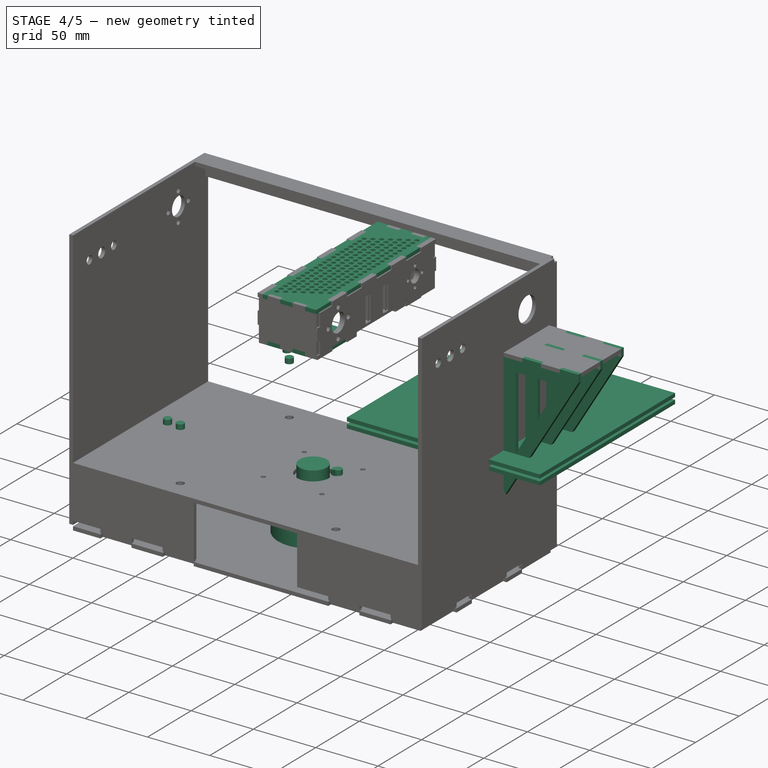
[diagram: stage 4 of 5 — iso view after this stage's code; geometry added in this stage tinted green]
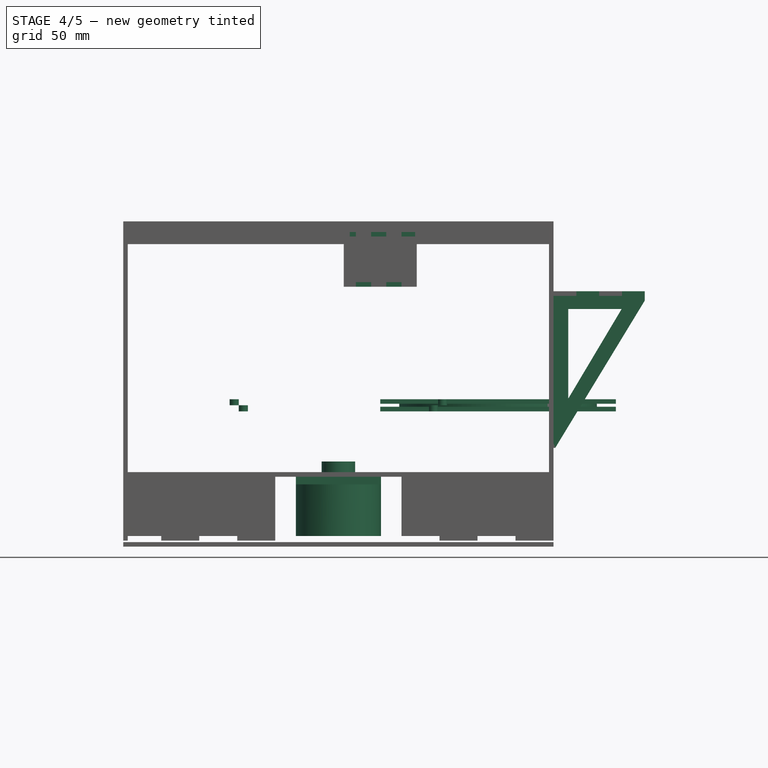
[diagram: stage 4 of 5 — front view after this stage's code; geometry added in this stage tinted green]
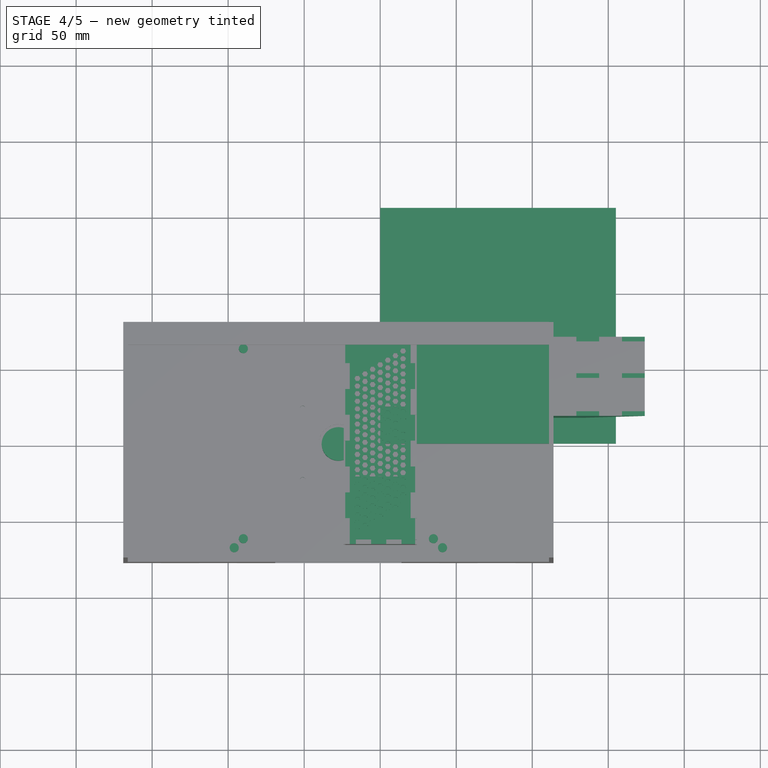
[diagram: stage 4 of 5 — top view after this stage's code; geometry added in this stage tinted green]
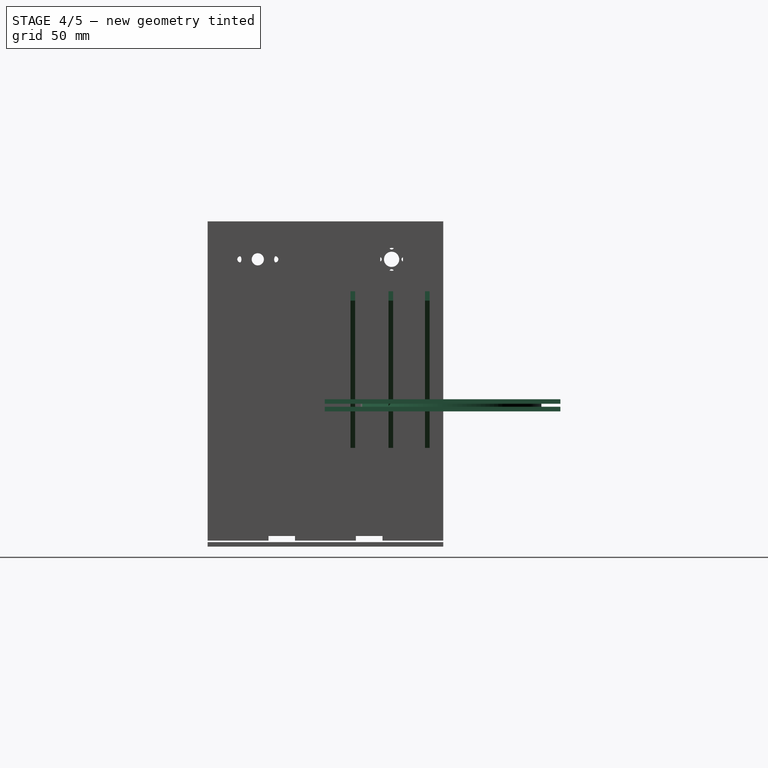
[diagram: stage 4 of 5 — right view after this stage's code; geometry added in this stage tinted green]
FEATURE [Part::Box] Box008  label="Carraige base smooth side"
  Height = 3
  Length = 46
  Placement = pos=(-23,-68,52) rot=(0,0,1;0rad)
  Width = 45
FEATURE [Part::Box] Box009  label="Carraige base threaded side"
  Height = 3
  Length = 46
  Placement = pos=(-23,23,52) rot=(0,0,1;0rad)
  Width = 45
FEATURE [Part::Box] Box010  label="Carraige top"
  Height = 3
  Length = 46
  Placement = pos=(-23,-68,85) rot=(0,0,1;0rad)
  Width = 136
FEATURE [Part::Part2DObjectPython] Polygon  # Draft 2D object (typed FeaturePython)
  ChamferSize = 0
  DrawMode = 0
  FacesNumber = 6
  FilletRadius = 0
  MakeFace = true
  Placement = pos=(-14.9723,38.9664,88) rot=(0,0,1;3.14159rad)
  Radius = 1.93609
  Support = -> Box010
FEATURE [Part::FeaturePython] Array010  # Draft array (typed FeaturePython)
  Angle = 360
  ArrayType = 0
  Axis = (0,0,1)
  Base = -> Polygon
  Fuse = false
  NumberPolar = 1
  NumberX = 7
  NumberY = 21
  NumberZ = 1
  Placement = pos=(1,-98,0) rot=(0,0,1;0rad)
FEATURE [Part::Extrusion] Extrude010
  Base = -> Array010
  Dir = (0,0,-3)
  Solid = false
FEATURE [Part::Cut] Cut016  label="Carriage lid"
  Base = -> Box010
  Tool = -> Extrude010
FEATURE [Part::Cylinder] Cylinder052  label="Motor counpling"
  Angle = 360
  Height = 25
  Placement = pos=(105,44,70) rot=(0,1,0;1.5708rad)
  Radius = 9.5
FEATURE [Part::Box] Box015  label="Cube008"
  Height = 3
  Length = 155
  Placement = pos=(0,0,-25) rot=(0,0,1;0rad)
  Width = 155
FEATURE [Part::Box] Box016  label="Cube009"
  Height = 3
  Length = 155
  Placement = pos=(0,0,-30) rot=(0,0,1;0rad)
  Width = 155
FEATURE [Part::Cylinder] Cylinder057  label="Cylinder085"
  Angle = 360
  Height = 8
  Placement = pos=(77.5,77.5,-30) rot=(0,0,1;0rad)
  Radius = 65
FEATURE [Part::MultiFuse] Fusion025  label="lower plate screw holes"
  Shapes = -> [Cylinder061,Cylinder058,Cylinder059,Cylinder060]
FEATURE [Part::Cylinder] Cylinder062  label="Cylinder090"
  Angle = 360
  Height = 4
  Placement = pos=(41,-68.5,-26) rot=(0,0,1;0rad)
  Radius = 3
FEATURE [Part::Cylinder] Cylinder063  label="Cylinder091"
  Angle = 360
  Height = 4
  Placement = pos=(-96,68.5,-26) rot=(0,0,1;0rad)
  Radius = 3
FEATURE [Part::Cylinder] Cylinder064  label="Cylinder092"
  Angle = 360
  Height = 4
  Placement = pos=(41,68.5,-26) rot=(0,0,1;0rad)
  Radius = 3
FEATURE [Part::Cylinder] Cylinder065  label="Cylinder093"
  Angle = 360
  Height = 4
  Placement = pos=(-96,-68.5,-26) rot=(0,0,1;0rad)
  Radius = 3
FEATURE [Part::MultiFuse] Fusion026  label="Upper plare screw holes"
  Shapes = -> [Cylinder065,Cylinder062,Cylinder063,Cylinder064]
FEATURE [Part::MultiFuse] Fusion027  label="Lazy susan screw holes"
  Shapes = -> [Fusion026,Fusion025]
FEATURE [Part::Part2DObjectPython] Rectangle002  # Draft 2D object (typed FeaturePython)
  ChamferSize = 0
  Columns = 1
  FilletRadius = 0
  Height = 3
  Length = -17
  MakeFace = true
  Placement = pos=(24,-51,88) rot=(0.57735,-0.57735,0.57735;4.18879rad)
  Rows = 1
  Support = -> Cylinder052
FEATURE [Part::Part2DObjectPython] Rectangle004  # Draft 2D object (typed FeaturePython)
  ChamferSize = 0
  Columns = 1
  FilletRadius = 0
  Height = 3
  Length = -17
  MakeFace = true
  Placement = pos=(24,-17,88) rot=(0.57735,-0.57735,0.57735;4.18879rad)
  Rows = 1
  Support = -> Cylinder052
FEATURE [Part::Part2DObjectPython] Rectangle007  # Draft 2D object (typed FeaturePython)
  ChamferSize = 0
  Columns = 1
  FilletRadius = 0
  Height = 3
  Length = -17
  MakeFace = true
  Placement = pos=(24,17,88) rot=(0.57735,-0.57735,0.57735;4.18879rad)
  Rows = 1
  Support = -> Cylinder052
FEATURE [Part::Part2DObjectPython] Rectangle009  # Draft 2D object (typed FeaturePython)
  ChamferSize = 0
  Columns = 1
  FilletRadius = 0
  Height = 3
  Length = -17
  MakeFace = true
  Placement = pos=(24,51,88) rot=(0.57735,-0.57735,0.57735;4.18879rad)
  Rows = 1
  Support = -> Cylinder052
FEATURE [Part::Extrusion] Extrude012
  Base = -> Rectangle002
  Dir = (-3,0,0)
  Solid = false
FEATURE [Part::Extrusion] Extrude014
  Base = -> Rectangle004
  Dir = (-3,0,0)
  Solid = false
FEATURE [Part::Extrusion] Extrude017
  Base = -> Rectangle007
  Dir = (-3,0,0)
  Solid = false
FEATURE [Part::Extrusion] Extrude019
  Base = -> Rectangle009
  Dir = (-3,0,0)
  Solid = false
FEATURE [Part::MultiFuse] Fusion029  label="Finger Joints B Front"
  Placement = pos=(-1,0,0) rot=(0,0,1;0rad)
  Shapes = -> [Extrude012,Extrude014,Extrude017,Extrude019]
FEATURE [Part::Part2DObjectPython] Rectangle010 .. Rectangle013  x4 (patterned run collapsed; names and placements below)
  ChamferSize = 0
  Columns = 1
  FilletRadius = 0
  Height = 3
  Length = -17
  MakeFace = true
  Rows = 1
  placements: 4 in arithmetic series — first pos=(24,-68,88) rot=(0.57735,-0.57735,0.57735;4.18879rad), step (0,34,0), last pos=(24,34,88) rot=(0.57735,-0.57735,0.57735;4.18879rad)
FEATURE [Part::Extrusion] Extrude020
  Base = -> Rectangle010
  Dir = (-3,0,0)
  Placement = pos=(1,0,0) rot=(0,0,1;0rad)
  Solid = false
FEATURE [Part::Extrusion] Extrude021
  Base = -> Rectangle011
  Dir = (-3,0,0)
  Placement = pos=(1,0,0) rot=(0,0,1;0rad)
  Solid = false
FEATURE [Part::Extrusion] Extrude022
  Base = -> Rectangle012
  Dir = (-3,0,0)
  Placement = pos=(1,0,0) rot=(0,0,1;0rad)
  Solid = false
FEATURE [Part::Extrusion] Extrude023
  Base = -> Rectangle013
  Dir = (-3,0,0)
  Placement = pos=(1,0,0) rot=(0,0,1;0rad)
  Solid = false
FEATURE [Part::MultiFuse] Fusion030  label="Finger joints A Rear"
  Placement = pos=(-45,0,0) rot=(0,0,1;0rad)
  Shapes = -> [Extrude020,Extrude021,Extrude022,Extrude023]
FEATURE [Part::MultiFuse] Fusion032  label="Finger joints A"
  Shapes = -> [Fusion029,Fusion030]
FEATURE [Part::Cut] Cut024  label="Carriage lid with front and back tabs"
  Base = -> Cut016
  Tool = -> Fusion032
FEATURE [Part::MultiFuse] Fusion047  label="Carraige base without tabs"
  Shapes = -> [Box009,Box008]
FEATURE [Part::Part2DObjectPython] Rectangle050 .. Rectangle053  x4 (patterned run collapsed; names and placements below)
  ChamferSize = 0
  Columns = 1
  FilletRadius = 0
  Height = 3
  Length = -17
  MakeFace = true
  Rows = 1
  placements: 4 in arithmetic series — first pos=(24,-68,88) rot=(0.57735,-0.57735,0.57735;4.18879rad), step (0,34,0), last pos=(24,34,88) rot=(0.57735,-0.57735,0.57735;4.18879rad)
FEATURE [Part::Extrusion] Extrude060
  Base = -> Rectangle050
  Dir = (-3,0,0)
  Solid = false
FEATURE [Part::Extrusion] Extrude061
  Base = -> Rectangle051
  Dir = (-3,0,0)
  Solid = false
FEATURE [Part::Extrusion] Extrude062
  Base = -> Rectangle052
  Dir = (-3,0,0)
  Solid = false
FEATURE [Part::Extrusion] Extrude063
  Base = -> Rectangle053
  Dir = (-3,0,0)
  Solid = false
FEATURE [Part::MultiFuse] Fusion049  label="Finger joints A front003"
  Placement = pos=(-1,0,0) rot=(0,0,1;0rad)
  Shapes = -> [Extrude060,Extrude061,Extrude062,Extrude063]
FEATURE [Part::Part2DObjectPython] Rectangle054 .. Rectangle057  x4 (patterned run collapsed; names and placements below)
  ChamferSize = 0
  Columns = 1
  FilletRadius = 0
  Height = 3
  Length = -17
  MakeFace = true
  Rows = 1
  placements: 4 in arithmetic series — first pos=(24,-51,88) rot=(0.57735,-0.57735,0.57735;4.18879rad), step (0,34,0), last pos=(24,51,88) rot=(0.57735,-0.57735,0.57735;4.18879rad)
FEATURE [Part::Extrusion] Extrude064
  Base = -> Rectangle054
  Dir = (-3,0,0)
  Solid = false
FEATURE [Part::Extrusion] Extrude065
  Base = -> Rectangle055
  Dir = (-3,0,0)
  Solid = false
FEATURE [Part::Extrusion] Extrude066
  Base = -> Rectangle056
  Dir = (-3,0,0)
  Solid = false
FEATURE [Part::Extrusion] Extrude067
  Base = -> Rectangle057
  Dir = (-3,0,0)
  Solid = false
FEATURE [Part::MultiFuse] Fusion050  label="Finger Joints B Rear003"
  Placement = pos=(-44,0,0) rot=(0,0,1;0rad)
  Shapes = -> [Extrude064,Extrude065,Extrude066,Extrude067]
FEATURE [Part::MultiFuse] Fusion051  label="Finger joints B003"
  Placement = pos=(0,0,-33) rot=(0,0,1;0rad)
  Shapes = -> [Fusion050,Fusion049]
FEATURE [Part::Box] Box019  label="Carraige base smooth side002"
  Height = 3
  Length = 46
  Placement = pos=(-23,-68,52) rot=(0,0,1;0rad)
  Width = 45
FEATURE [Part::MultiFuse] Fusion052  label="Carraige base without tabs002"
  Shapes = -> [Box020,Box019]
FEATURE [Part::MultiCommon] Common001  label="Finger joints intersection w carriage base001"
  Shapes = -> [Fusion052,Fusion051]
FEATURE [Part::Cut] Cut025  label="Carraige base with front and back tabs"
  Base = -> Fusion047
  Tool = -> Common001
FEATURE [Part::Extrusion] Extrude069
  Base = -> Rectangle059
  Dir = (0,3,0)
  Solid = false
FEATURE [Part::Extrusion] Extrude071  label="Finger joints bb"
  Base = -> Rectangle061
  Dir = (0,3,0)
  Solid = false
FEATURE [Part::MultiFuse] Fusion055  label="Finger joints bb001"
  Placement = pos=(0,0,33) rot=(0,0,1;0rad)
  Shapes = -> [Extrude069,Extrude071]
FEATURE [Part::Part2DObjectPython] Rectangle063  # Draft 2D object (typed FeaturePython)
  ChamferSize = 0
  Columns = 1
  FilletRadius = 0
  Height = -3
  Length = -7
  MakeFace = true
  Placement = pos=(21,-68,55) rot=(1,0,0;1.5708rad)
  Rows = 1
FEATURE [Part::Part2DObjectPython] Rectangle064  # Draft 2D object (typed FeaturePython)
  ChamferSize = 0
  Columns = 1
  FilletRadius = 0
  Height = -3
  Length = -10
  MakeFace = true
  Placement = pos=(4,-68,55) rot=(1,0,0;1.5708rad)
  Rows = 1
FEATURE [Part::Part2DObjectPython] Rectangle065  # Draft 2D object (typed FeaturePython)
  ChamferSize = 0
  Columns = 1
  FilletRadius = 0
  Height = -3
  Length = -8
  MakeFace = true
  Placement = pos=(-16,-68,55) rot=(1,0,0;1.5708rad)
  Rows = 1
FEATURE [Part::Extrusion] Extrude073
  Base = -> Rectangle063
  Dir = (0,3,0)
  Solid = false
FEATURE [Part::Extrusion] Extrude074
  Base = -> Rectangle064
  Dir = (0,3,0)
  Solid = false
FEATURE [Part::Extrusion] Extrude075
  Base = -> Rectangle065
  Dir = (0,3,0)
  Solid = false
FEATURE [Part::MultiFuse] Fusion056  label="Finger joints aa001"
  Shapes = -> [Extrude073,Extrude075,Extrude074]
FEATURE [Part::Part2DObjectPython] Rectangle068  # Draft 2D object (typed FeaturePython)
  ChamferSize = 0
  Columns = 1
  FilletRadius = 0
  Height = -3
  Length = -10
  MakeFace = true
  Placement = pos=(14,-68,55) rot=(1,0,0;1.5708rad)
  Rows = 1
FEATURE [Part::Part2DObjectPython] Rectangle069  # Draft 2D object (typed FeaturePython)
  ChamferSize = 0
  Columns = 1
  FilletRadius = 0
  Height = -3
  Length = -10
  MakeFace = true
  Placement = pos=(-6,-68,55) rot=(1,0,0;1.5708rad)
  Rows = 1
FEATURE [Part::Extrusion] Extrude078
  Base = -> Rectangle068
  Dir = (0,3,0)
  Solid = false
FEATURE [Part::Extrusion] Extrude079  label="Finger joints bb004"
  Base = -> Rectangle069
  Dir = (0,3,0)
  Solid = false
FEATURE [Part::MultiFuse] Fusion058  label="Finger joints bb005"
  Placement = pos=(0,0,33) rot=(0,0,1;3.14159rad)
  Shapes = -> [Extrude078,Extrude079]
FEATURE [Part::Part2DObjectPython] Rectangle070  # Draft 2D object (typed FeaturePython)
  ChamferSize = 0
  Columns = 1
  FilletRadius = 0
  Height = -3
  Length = -7
  MakeFace = true
  Placement = pos=(21,-68,55) rot=(1,0,0;1.5708rad)
  Rows = 1
FEATURE [Part::Part2DObjectPython] Rectangle071  # Draft 2D object (typed FeaturePython)
  ChamferSize = 0
  Columns = 1
  FilletRadius = 0
  Height = -3
  Length = -10
  MakeFace = true
  Placement = pos=(4,-68,55) rot=(1,0,0;1.5708rad)
  Rows = 1
FEATURE [Part::Part2DObjectPython] Rectangle072  # Draft 2D object (typed FeaturePython)
  ChamferSize = 0
  Columns = 1
  FilletRadius = 0
  Height = -3
  Length = -8
  MakeFace = true
  Placement = pos=(-16,-68,55) rot=(1,0,0;1.5708rad)
  Rows = 1
FEATURE [Part::Extrusion] Extrude080
  Base = -> Rectangle070
  Dir = (0,3,0)
  Solid = false
FEATURE [Part::Extrusion] Extrude081
  Base = -> Rectangle071
  Dir = (0,3,0)
  Solid = false
FEATURE [Part::Extrusion] Extrude082
  Base = -> Rectangle072
  Dir = (0,3,0)
  Solid = false
FEATURE [Part::MultiFuse] Fusion060  label="Finger joints aa002"
  Placement = pos=(0,0,0) rot=(0,0,1;3.14159rad)
  Shapes = -> [Extrude080,Extrude082,Extrude081]
FEATURE [Part::MultiFuse] Fusion061
  Shapes = -> [Fusion056,Fusion060]
FEATURE [Part::Cut] Cut026  label="Carriage base with all tabs"
  Base = -> Cut025
  Tool = -> Fusion061
FEATURE [Part::MultiFuse] Fusion065  label="Side tabs"
  Shapes = -> [Fusion055,Fusion058]
FEATURE [Part::Cut] Cut027  label="Carriage lid all tabs"
  Base = -> Cut024
  Tool = -> Fusion065
FEATURE [Part::Box] Box033  label="Faceplate"
  Height = 5
  Length = 56
  Placement = pos=(0,-29,-90) rot=(0,0,1;0rad)
  Width = 56
FEATURE [Part::Cylinder] Cylinder120  label="Cylinder152"
  Angle = 360
  Height = 35
  Placement = pos=(28,-1,-124) rot=(0,0,1;0rad)
  Radius = 28
FEATURE [Part::FeaturePython] Array015  label="Mounting Holes"  # Draft array (typed FeaturePython)
  Angle = 360
  ArrayType = 1
  Axis = (0,0,1)
  Base = -> Cylinder121
  Fuse = false
  NumberPolar = 4
  NumberX = 2
  NumberY = 2
  NumberZ = 1
FEATURE [Part::Cylinder] Cylinder122  label="Shaft001"
  Angle = 360
  Height = 10
  Placement = pos=(28,-1,-85) rot=(0,0,1;0rad)
  Radius = 11
FEATURE [Part::MultiFuse] Fusion064002
  Shapes = -> [Box033,Cylinder120,Cylinder122]
FEATURE [Part::Cut] Cut035003  label="Turntable motor"
  Base = -> Fusion064002
  Placement = pos=(-55.5,1.5,12) rot=(0,0,1;0rad)
  Tool = -> Array015
FEATURE [Part::Extrusion] Extrude127
  Base = -> Rectangle111
  Dir = (0,3,0)
  Placement = pos=(0,94,0) rot=(0,0,1;0rad)
  Solid = false
FEATURE [Part::Extrusion] Extrude129
  Base = -> Rectangle113
  Dir = (0,3,0)
  Placement = pos=(0,94,0) rot=(0,0,1;0rad)
  Solid = false
FEATURE [Part::Extrusion] Extrude132
  Base = -> Rectangle116
  Dir = (0,3,0)
  Placement = pos=(0,94,0) rot=(0,0,1;0rad)
  Solid = false
FEATURE [Part::Extrusion] Extrude134
  Base = -> Rectangle118
  Dir = (0,3,0)
  Placement = pos=(0,94,0) rot=(0,0,1;0rad)
  Solid = false
FEATURE [Part::MultiFuse] Fusion064006
  Shapes = -> [Extrude127,Extrude129,Extrude132,Extrude134]
FEATURE [Part::Cut] Cut035007  label="NEMA platform support 001"
  Base = -> Cut035004
  Tool = -> Fusion064006
FEATURE [Part::Box] Box046  label="Cube025"
  Height = 103
  Length = 63
  Placement = pos=(111,17,-54) rot=(0,0,1;0rad)
  Width = 3
FEATURE [Part::Part2DObjectPython] DWire007  # Draft 2D object (typed FeaturePython)
  ChamferSize = 0
  Closed = true
  FilletRadius = 0
  Length = 273.805
  MakeFace = true
  Placement = pos=(1,0,0) rot=(0,0,1;0rad)
  Points = (3) [(173.979,17,44.4573),(114.042,17,-54.1463),(173.993,17,-54.0051)]
  Subdivisions = 0
FEATURE [Part::Part2DObjectPython] DWire008  # Draft 2D object (typed FeaturePython)
  ChamferSize = 3
  Closed = true
  FilletRadius = 0
  Length = 162.685
  MakeFace = true
  Points = (4) [(158.708,17,37.2925),(123.654,17,37.2925),(123.654,17,-21.6678),(158.767,17,37.2757)]
  Subdivisions = 0
FEATURE [Part::Extrusion] Extrude135
  Base = -> DWire007
  Dir = (0,3,0)
  Solid = true
FEATURE [Part::Extrusion] Extrude136
  Base = -> DWire008
  Dir = (0,3,0)
  Solid = true
FEATURE [Part::MultiFuse] Fusion064007
  Shapes = -> [Extrude136,Extrude135]
FEATURE [Part::Cut] Cut035008  label="NEMA platform support 002"
  Base = -> Box046
  Tool = -> Fusion064007
FEATURE [Part::Part2DObjectPython] Rectangle119  # Draft 2D object (typed FeaturePython)
  ChamferSize = 0
  Columns = 1
  FilletRadius = 0
  Height = 25
  Length = -3
  MakeFace = true
  Placement = pos=(111,-77,24) rot=(0,0.707107,-0.707107;3.14159rad)
  Rows = 1
FEATURE [Part::Part2DObjectPython] Rectangle120  # Draft 2D object (typed FeaturePython)
  ChamferSize = 0
  Columns = 1
  FilletRadius = 0
  Height = 25
  Length = -3
  MakeFace = true
  Placement = pos=(111,-77,-26) rot=(0,0.707107,-0.707107;3.14159rad)
  Rows = 1
FEATURE [Part::Part2DObjectPython] Rectangle121  # Draft 2D object (typed FeaturePython)
  ChamferSize = 0
  Columns = 1
  FilletRadius = 0
  Height = 3
  Length = 15
  MakeFace = true
  Placement = pos=(159,-77,49) rot=(0,0.707107,-0.707107;3.14159rad)
  Rows = 1
FEATURE [Part::Part2DObjectPython] Rectangle122  # Draft 2D object (typed FeaturePython)
  ChamferSize = 0
  Columns = 1
  FilletRadius = 0
  Height = 3
  Length = 15
  MakeFace = true
  Placement = pos=(129,-77,49) rot=(0,0.707107,-0.707107;3.14159rad)
  Rows = 1
FEATURE [Part::Extrusion] Extrude137
  Base = -> Rectangle119
  Dir = (0,3,0)
  Placement = pos=(0,94,0) rot=(0,0,1;0rad)
  Solid = false
FEATURE [Part::Extrusion] Extrude138
  Base = -> Rectangle120
  Dir = (0,3,0)
  Placement = pos=(0,94,0) rot=(0,0,1;0rad)
  Solid = false
FEATURE [Part::Extrusion] Extrude139
  Base = -> Rectangle121
  Dir = (0,3,0)
  Placement = pos=(0,94,0) rot=(0,0,1;0rad)
  Solid = false
FEATURE [Part::Extrusion] Extrude140
  Base = -> Rectangle122
  Dir = (0,3,0)
  Placement = pos=(0,94,0) rot=(0,0,1;0rad)
  Solid = false
FEATURE [Part::MultiFuse] Fusion064008
  Shapes = -> [Extrude137,Extrude138,Extrude139,Extrude140]
FEATURE [Part::Cut] Cut035009  label="NEMA platform support 003"
  Base = -> Cut035008
  Placement = pos=(0,49,0) rot=(0,0,1;0rad)
  Tool = -> Fusion064008
FEATURE [Part::Box] Box047  label="Cube026"
  Height = 103
  Length = 63
  Placement = pos=(111,17,-54) rot=(0,0,1;0rad)
  Width = 3
FEATURE [Part::Part2DObjectPython] DWire009  # Draft 2D object (typed FeaturePython)
  ChamferSize = 0
  Closed = true
  FilletRadius = 0
  Length = 273.805
  MakeFace = true
  Placement = pos=(1,0,0) rot=(0,0,1;0rad)
  Points = (3) [(173.979,17,44.4573),(114.042,17,-54.1463),(173.993,17,-54.0051)]
  Subdivisions = 0
FEATURE [Part::Part2DObjectPython] DWire010  # Draft 2D object (typed FeaturePython)
  ChamferSize = 3
  Closed = true
  FilletRadius = 0
  Length = 162.685
  MakeFace = true
  Points = (4) [(158.708,17,37.2925),(123.654,17,37.2925),(123.654,17,-21.6678),(158.767,17,37.2757)]
  Subdivisions = 0
FEATURE [Part::Extrusion] Extrude141
  Base = -> DWire009
  Dir = (0,3,0)
  Solid = true
FEATURE [Part::Extrusion] Extrude142
  Base = -> DWire010
  Dir = (0,3,0)
  Solid = true
FEATURE [Part::MultiFuse] Fusion064009
  Shapes = -> [Extrude142,Extrude141]
FEATURE [Part::Cut] Cut035010  label="NEMA platform support 004"
  Base = -> Box047
  Tool = -> Fusion064009
FEATURE [Part::Cut] Cut035011  label="NEMA platform support 005"
  Base = -> Cut035010
  Placement = pos=(0,25,0) rot=(0,0,1;0rad)
  Tool = -> Fusion064010
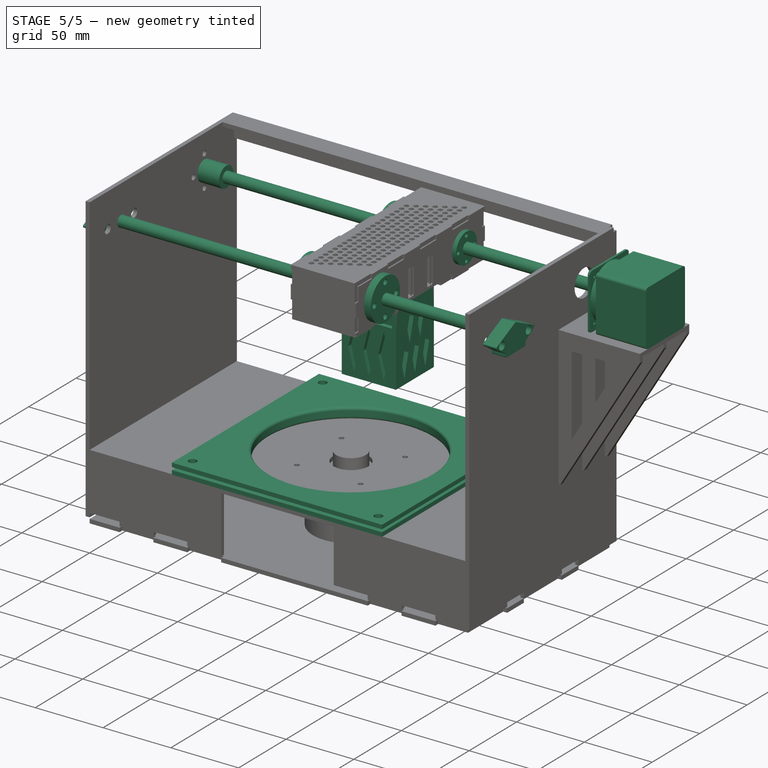
[diagram: stage 5 of 5 — iso view after this stage's code; geometry added in this stage tinted green]
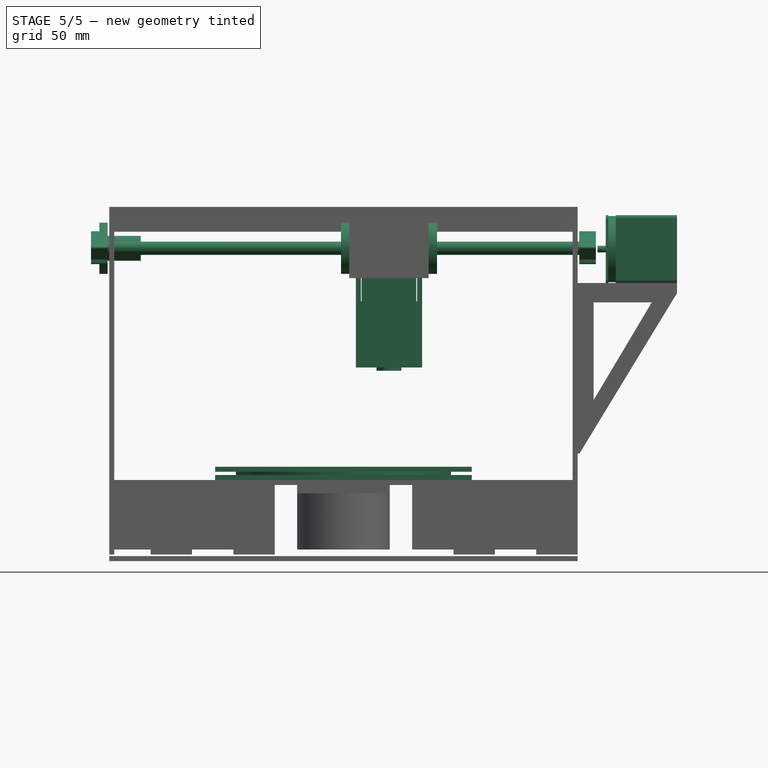
[diagram: stage 5 of 5 — front view after this stage's code; geometry added in this stage tinted green]
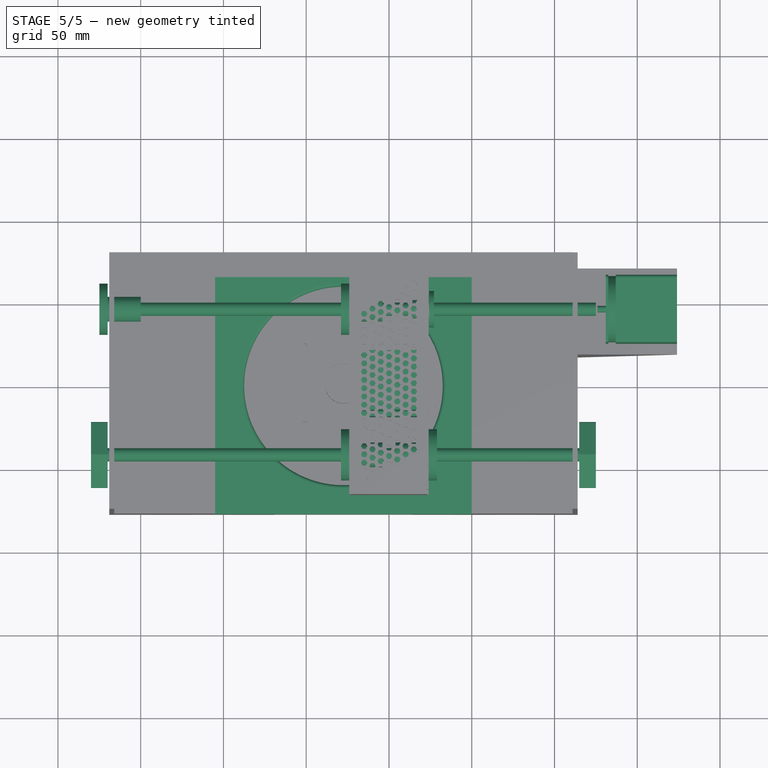
[diagram: stage 5 of 5 — top view after this stage's code; geometry added in this stage tinted green]
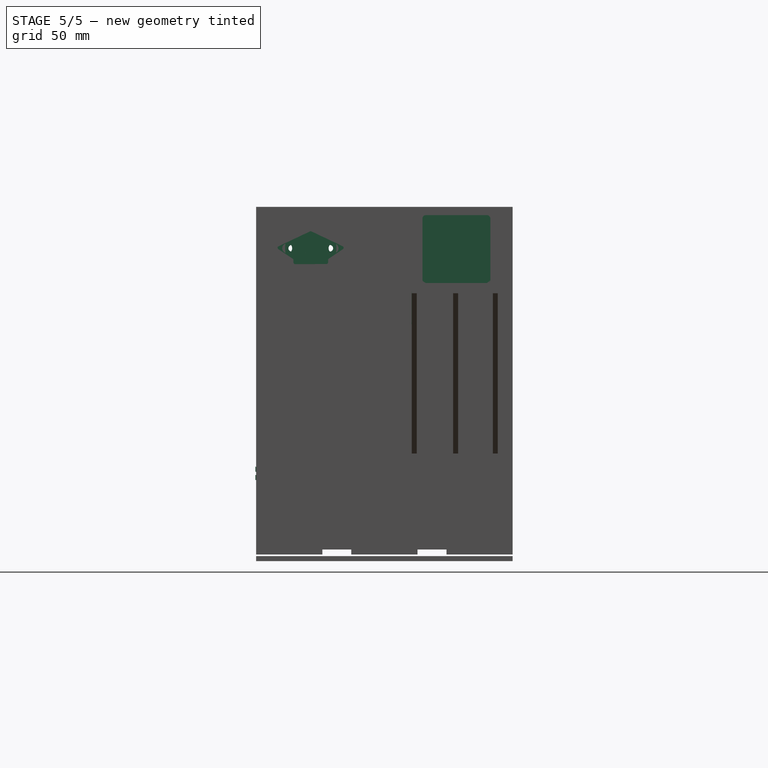
[diagram: stage 5 of 5 — right view after this stage's code; geometry added in this stage tinted green]
FEATURE [Part::Box] Box  label="Cube"
  Height = 40
  Length = 40
  Placement = pos=(-20,-20,0) rot=(0,0,1;0rad)
  Width = 40
FEATURE [Part::Part2DObjectPython] Rectangle  # Draft 2D object (typed FeaturePython)
  ChamferSize = 0
  Columns = 1
  FilletRadius = 0
  Height = 34
  Length = 34
  MakeFace = true
  Placement = pos=(17,17,40) rot=(0,0,1;3.14159rad)
  Rows = 1
FEATURE [Part::Extrusion] Extrude001
  Base = -> Rectangle
  Dir = (0,0,-37)
  Solid = false
FEATURE [Part::Cut] Cut
  Base = -> Box
  Tool = -> Extrude001
FEATURE [Part::Cylinder] Cylinder
  Angle = 360
  Height = 3
  Radius = 8
FEATURE [Part::Cut] Cut001  label="Chassis"
  Base = -> Cut
  Tool = -> Cylinder
FEATURE [Part::Part2DObjectPython] BSpline  label="Base vents 1"  # Draft 2D object (typed FeaturePython)
  Closed = true
  MakeFace = true
  Points = (5) [(-13.967,-15.8985,0),(-11.0044,-13.8617,0),(-8,-8,0),(-2.79563,-9.84993,0),(-2.11671,-14.5407,0)]
FEATURE [Part::FeaturePython] Array  label="Base Vents 1"  # Draft array (typed FeaturePython)
  Angle = 360
  ArrayType = 1
  Axis = (0,0,1)
  Base = -> BSpline
  Fuse = false
  NumberPolar = 4
  NumberX = 2
  NumberY = 2
  NumberZ = 1
FEATURE [Part::Part2DObjectPython] BSpline002  # Draft 2D object (typed FeaturePython)
  Closed = true
  MakeFace = true
  Points = (6) [(-14.0287,-12.3805,-1.52656e-16),(-15.6335,-8.73896,0),(-13.2264,-2.56692,0),(-10.3872,-1.02391,0),(-11.4365,-4.48025,0),(-11.4365,-8.49208,0)]
FEATURE [Part::FeaturePython] Array001  label="Base vents 2"  # Draft array (typed FeaturePython)
  Angle = 360
  ArrayType = 1
  Axis = (0,0,1)
  Base = -> BSpline002
  Fuse = false
  NumberPolar = 4
  NumberX = 2
  NumberY = 2
  NumberZ = 1
FEATURE [Part::Extrusion] Extrude
  Base = -> Array
  Dir = (0,0,3)
  Solid = false
FEATURE [Part::Extrusion] Extrude002
  Base = -> Array001
  Dir = (0,0,3)
  Solid = false
FEATURE [Part::MultiFuse] Fusion  label="Base vents"
  Shapes = -> [Extrude,Extrude002]
FEATURE [Part::Cut] Cut002  label="Chassis with base vents"
  Base = -> Cut001
  Tool = -> Fusion
FEATURE [Part::Cut] Cut003
  Base = -> Cut002
FEATURE [Part::Part2DObjectPython] DWire003  # Draft 2D object (typed FeaturePython)
  ChamferSize = 0
  Closed = true
  FilletRadius = 0
  Length = 66.0594
  MakeFace = true
  Points = (5) [(-0.0217852,-20,35.9444),(-4.15705,-20,19.7737),(-0.0835034,-20,3.97325),(4.11348,-20,19.9588),(0.0399391,-20,35.8827)]
  Subdivisions = 0
FEATURE [Part::Part2DObjectPython] DWire004  # Draft 2D object (typed FeaturePython)
  ChamferSize = 0
  Closed = true
  FilletRadius = 0
  Length = 66.0594
  MakeFace = true
  Placement = pos=(-11,0,0) rot=(0,0,1;0rad)
  Points = (5) [(-0.0217852,-20,35.9444),(-4.15705,-20,19.7737),(-0.0835034,-20,3.97325),(4.11348,-20,19.9588),(0.0399391,-20,35.8827)]
  Subdivisions = 0
FEATURE [Part::Part2DObjectPython] DWire005  # Draft 2D object (typed FeaturePython)
  ChamferSize = 0
  Closed = true
  FilletRadius = 0
  Length = 66.0594
  MakeFace = true
  Placement = pos=(11,0,0) rot=(0,0,1;0rad)
  Points = (5) [(-0.0217852,-20,35.9444),(-4.15705,-20,19.7737),(-0.0835034,-20,3.97325),(4.11348,-20,19.9588),(0.0399391,-20,35.8827)]
  Subdivisions = 0
FEATURE [Part::Extrusion] Extrude006
  Base = -> DWire003
  Dir = (0,3,0)
  Solid = false
FEATURE [Part::Extrusion] Extrude007
  Base = -> DWire004
  Dir = (0,3,0)
  Solid = false
FEATURE [Part::Extrusion] Extrude008
  Base = -> DWire005
  Dir = (0,3,0)
  Solid = false
FEATURE [Part::MultiFuse] Fusion002  label="Side Vents001"
  Shapes = -> [Extrude006,Extrude007,Extrude008]
FEATURE [Part::FeaturePython] Array002  label="Polar array of side vents"  # Draft array (typed FeaturePython)
  Angle = 360
  ArrayType = 1
  Axis = (0,0,1)
  Base = -> Fusion002
  Fuse = false
  NumberPolar = 4
  NumberX = 2
  NumberY = 2
  NumberZ = 1
FEATURE [Part::Cut] Cut004  label="Chassis with all vents"
  Base = -> Cut003
  Tool = -> Array002
FEATURE [Part::Box] Box001  label="Cube001"
  Height = 30
  Length = 40
  Placement = pos=(-20,17,40) rot=(0,0,1;0rad)
  Width = 3
FEATURE [Part::Cylinder] Cylinder001
  Angle = 360
  Height = 3
  Placement = pos=(-10,20,65) rot=(1,0,0;1.5708rad)
  Radius = 3
FEATURE [Part::Cylinder] Cylinder002
  Angle = 360
  Height = 3
  Placement = pos=(-10,20,65) rot=(1,0,0;1.5708rad)
  Radius = 8
FEATURE [Part::Cylinder] Cylinder003
  Angle = 360
  Height = 3
  Placement = pos=(10,20,65) rot=(1,0,0;1.5708rad)
  Radius = 3
FEATURE [Part::Cylinder] Cylinder004
  Angle = 360
  Height = 3
  Placement = pos=(10,20,65) rot=(1,0,0;1.5708rad)
  Radius = 8
FEATURE [Part::MultiFuse] Fusion003  label="Screw point Left"
  Shapes = -> [Cylinder002,Box001,Cylinder004]
FEATURE [Part::MultiFuse] Fusion004  label="Screw holes"
  Shapes = -> [Cylinder003,Cylinder001]
FEATURE [Part::Cut] Cut005  label="Screw mounting point"
  Base = -> Fusion003
  Tool = -> Fusion004
FEATURE [Part::FeaturePython] Array003  label="Screw mounting points"  # Draft array (typed FeaturePython)
  Angle = 360
  ArrayType = 1
  Axis = (0,0,1)
  Base = -> Cut005
  Fuse = false
  NumberPolar = 2
  NumberX = 2
  NumberY = 2
  NumberZ = 1
FEATURE [Part::MultiFuse] Fusion005  label="Mount without upper vents"
  Shapes = -> [Array003,Cut004]
FEATURE [Part::FeaturePython] Array004  label="Upper vents"  # Draft array (typed FeaturePython)
  Angle = 360
  ArrayType = 1
  Axis = (0,0,1)
  Fuse = false
  NumberPolar = 2
  NumberX = 2
  NumberY = 2
  NumberZ = 1
FEATURE [Part::Cut] Cut006  label="Complete laser mount001"
  Base = -> Fusion005
  Placement = pos=(0,0,-2) rot=(0,0,1;1.5708rad)
  Tool = -> Array004
FEATURE [Part::Box] Box002  label="Cube002"
  Height = 58
  Length = 33
  Placement = pos=(-16.5,-16.5,3) rot=(0,0,1;0rad)
  Width = 33
FEATURE [Part::Cylinder] Cylinder005
  Angle = 360
  Height = 10
  Placement = pos=(0,0,-2) rot=(0,0,1;0rad)
  Radius = 7.5
FEATURE [Part::MultiFuse] Fusion006  label="Laser module"
  Placement = pos=(0,0,-2) rot=(0,0,1;0rad)
  Shapes = -> [Cylinder005,Box002]
FEATURE [Part::Cylinder] Cylinder006
  Angle = 360
  Height = 25
  Placement = pos=(-51,0,0) rot=(0,0,1;0rad)
  Radius = 7.5
FEATURE [Part::Cylinder] Cylinder007
  Angle = 360
  Height = 5
  Placement = pos=(-51,0,0) rot=(0,0,1;0rad)
  Radius = 15.5
FEATURE [Part::Cylinder] Cylinder008
  Angle = 360
  Height = 25
  Placement = pos=(-51,0,0) rot=(0,0,1;0rad)
  Radius = 4
FEATURE [Part::MultiFuse] Fusion009
  Shapes = -> [Cylinder006,Cylinder007]
FEATURE [Part::Cut] Cut008
  Base = -> Fusion009
  Tool = -> Cylinder008
FEATURE [Part::Cylinder] Cylinder009
  Angle = 360
  Height = 5
  Placement = pos=(-62.5,0,0) rot=(0,0,1;0rad)
  Radius = 2
FEATURE [Part::FeaturePython] Array006  label="Screw Holes"  # Draft array (typed FeaturePython)
  Angle = 360
  ArrayType = 1
  Axis = (0,0,1)
  Base = -> Cylinder009
  Fuse = false
  NumberPolar = 4
  NumberX = 2
  NumberY = 2
  NumberZ = 1
FEATURE [Part::Cut] Cut009  label="Linear Bearing"
  Base = -> Cut008
  Placement = pos=(-29,-44,19) rot=(0,1,0;1.5708rad)
  Tool = -> Array006
FEATURE [Part::Cylinder] Cylinder010
  Angle = 360
  Height = 25
  Placement = pos=(-51,0,0) rot=(0,0,1;0rad)
  Radius = 7.5
FEATURE [Part::Cylinder] Cylinder011
  Angle = 360
  Height = 5
  Placement = pos=(-51,0,0) rot=(0,0,1;0rad)
  Radius = 15.5
FEATURE [Part::Cylinder] Cylinder012
  Angle = 360
  Height = 25
  Placement = pos=(-51,0,0) rot=(0,0,1;0rad)
  Radius = 4
FEATURE [Part::MultiFuse] Fusion010
  Shapes = -> [Cylinder010,Cylinder011]
FEATURE [Part::Cut] Cut010
  Base = -> Fusion010
  Tool = -> Cylinder012
FEATURE [Part::Cylinder] Cylinder013
  Angle = 360
  Height = 5
  Placement = pos=(-62.5,0,0) rot=(0,0,1;0rad)
  Radius = 2
FEATURE [Part::FeaturePython] Array007  label="Screw Holes001"  # Draft array (typed FeaturePython)
  Angle = 360
  ArrayType = 1
  Axis = (0,0,1)
  Base = -> Cylinder013
  Fuse = false
  NumberPolar = 4
  NumberX = 2
  NumberY = 2
  NumberZ = 1
FEATURE [Part::Cut] Cut011  label="Linear Bearing001"
  Base = -> Cut010
  Placement = pos=(-29,44,19) rot=(0,1,0;1.5708rad)
  Tool = -> Array007
FEATURE [Part::Cylinder] Cylinder014
  Angle = 360
  Height = 25
  Placement = pos=(-51,0,0) rot=(0,0,1;0rad)
  Radius = 7.5
FEATURE [Part::Cylinder] Cylinder015
  Angle = 360
  Height = 5
  Placement = pos=(-51,0,0) rot=(0,0,1;0rad)
  Radius = 15.5
FEATURE [Part::Cylinder] Cylinder016
  Angle = 360
  Height = 25
  Placement = pos=(-51,0,0) rot=(0,0,1;0rad)
  Radius = 4
FEATURE [Part::MultiFuse] Fusion011
  Shapes = -> [Cylinder014,Cylinder015]
FEATURE [Part::Cut] Cut012
  Base = -> Fusion011
  Tool = -> Cylinder016
FEATURE [Part::Cylinder] Cylinder017
  Angle = 360
  Height = 5
  Placement = pos=(-62.5,0,0) rot=(0,0,1;0rad)
  Radius = 2
FEATURE [Part::FeaturePython] Array008  label="Screw Holes002"  # Draft array (typed FeaturePython)
  Angle = 360
  ArrayType = 1
  Axis = (0,0,1)
  Base = -> Cylinder017
  Fuse = false
  NumberPolar = 4
  NumberX = 2
  NumberY = 2
  NumberZ = 1
FEATURE [Part::Cut] Cut013  label="Linear Bearing002"
  Base = -> Cut012
  Placement = pos=(29,-44,121) rot=(0,-1,0;1.5708rad)
  Tool = -> Array008
FEATURE [Part::Cylinder] Cylinder018
  Angle = 360
  Height = 3
  Placement = pos=(85,70,0) rot=(0,0,1;0rad)
  Radius = 11
FEATURE [Part::Cylinder] Cylinder019
  Angle = 360
  Height = 13
  Placement = pos=(85,70,0) rot=(0,0,1;0rad)
  Radius = 5.5
FEATURE [Part::Cylinder] Cylinder020
  Angle = 360
  Height = 13
  Placement = pos=(85,70,0) rot=(0,0,1;0rad)
  Radius = 4
FEATURE [Part::MultiFuse] Fusion012
  Shapes = -> [Cylinder018,Cylinder019]
FEATURE [Part::Cut] Cut014
  Base = -> Fusion012
  Tool = -> Cylinder020
FEATURE [Part::Cylinder] Cylinder021
  Angle = 360
  Height = 3
  Placement = pos=(93.5,70,0) rot=(0,0,1;0rad)
  Radius = 1.5
FEATURE [Part::FeaturePython] Array009  label="screw holes"  # Draft array (typed FeaturePython)
  Angle = 360
  ArrayType = 1
  Axis = (0,0,1)
  Base = -> Cylinder021
  Fuse = false
  NumberPolar = 4
  NumberX = 2
  NumberY = 2
  NumberZ = 1
FEATURE [Part::Cut] Cut015  label="Threaded bearing"
  Base = -> Cut014
  Placement = pos=(27.2323,-26,-15) rot=(0,-1,0;1.5708rad)
  Tool = -> Array009
FEATURE [Part::Cylinder] Cylinder022  label="Smooth Rod"
  Angle = 360
  Height = 300
  Placement = pos=(-175,-44,70) rot=(0,1,0;1.5708rad)
  Radius = 4
FEATURE [Part::Cylinder] Cylinder023  label="Threaded Rod"
  Angle = 360
  Height = 300
  Placement = pos=(-175,44,70) rot=(0,1,0;1.5708rad)
  Radius = 4
FEATURE [Part::Fillet] Fillet003  label="Rod Clamp001"
  Edges = 7 edges r=1: [Edge1,Edge2,Edge5,Edge8,Edge25,Edge26,Edge27]
  Placement = pos=(-5,-97,20.5) rot=(0,0,1;0rad)
FEATURE [Part::Fillet] Fillet004  label="Rod Clamp002"
  Edges = 7 edges r=1: [Edge1,Edge2,Edge5,Edge8,Edge25,Edge26,Edge27]
  Placement = pos=(290,-97,20.5) rot=(0,0,1;0rad)
FEATURE [Part::Cylinder] Cylinder048  label="Cylinder078"
  Angle = 360
  Height = 25
  Placement = pos=(-51,0,0) rot=(0,0,1;0rad)
  Radius = 7.5
FEATURE [Part::Cylinder] Cylinder049  label="Cylinder079"
  Angle = 360
  Height = 5
  Placement = pos=(-51,0,0) rot=(0,0,1;0rad)
  Radius = 15.5
FEATURE [Part::Cylinder] Cylinder050  label="Cylinder080"
  Angle = 360
  Height = 25
  Placement = pos=(-51,0,0) rot=(0,0,1;0rad)
  Radius = 4
FEATURE [Part::MultiFuse] Fusion021
  Shapes = -> [Cylinder048,Cylinder049]
FEATURE [Part::Cut] Cut019
  Base = -> Fusion021
  Tool = -> Cylinder050
FEATURE [Part::Cylinder] Cylinder051  label="Cylinder081"
  Angle = 360
  Height = 5
  Placement = pos=(-62.5,0,0) rot=(0,0,1;0rad)
  Radius = 2
FEATURE [Part::FeaturePython] Array011  label="Screw Holes003"  # Draft array (typed FeaturePython)
  Angle = 360
  ArrayType = 1
  Axis = (0,0,1)
  Base = -> Cylinder051
  Fuse = false
  NumberPolar = 4
  NumberX = 2
  NumberY = 2
  NumberZ = 1
FEATURE [Part::Cut] Cut020  label="Linear Bearing003"
  Base = -> Cut019
  Placement = pos=(-175,44,19) rot=(0,1,0;1.5708rad)
  Tool = -> Array011
FEATURE [Part::Box] Box013  label="Cube006"
  Height = 41
  Length = 37
  Placement = pos=(0,-145,100) rot=(0,0,1;0rad)
  Width = 41
FEATURE [Part::Box] Box014  label="Cube007"
  Height = 41
  Length = 1.5
  Placement = pos=(-6,-145,100) rot=(0,0,1;0rad)
  Width = 41
FEATURE [Part::Cylinder] Cylinder053  label="Cylinder082"
  Angle = 360
  Height = 10
  Placement = pos=(-5,-124.5,120.5) rot=(0,1,0;1.5708rad)
  Radius = 20
FEATURE [Part::MultiFuse] Fusion022
  Shapes = -> [Box014,Box013,Cylinder053]
FEATURE [Part::Cylinder] Cylinder054  label="Shaft"
  Angle = 360
  Height = 10
  Placement = pos=(-11,-124.5,120.5) rot=(0,1,0;1.5708rad)
  Radius = 2
FEATURE [Part::MultiFuse] Fusion023
  Shapes = -> [Cylinder054,Box014,Box013,Cylinder053,Fusion022]
FEATURE [Part::Cylinder] Cylinder055  label="Cylinder083"
  Angle = 360
  Height = 15
  Placement = pos=(-8,-140,105) rot=(0,1,0;1.5708rad)
  Radius = 1
FEATURE [Part::FeaturePython] Array012  label="screw holes001"  # Draft array (typed FeaturePython)
  Angle = 360
  ArrayType = 1
  Axis = (1,0,0)
  Base = -> Cylinder055
  Fuse = false
  NumberPolar = 4
  NumberX = 2
  NumberY = 2
  NumberZ = 1
FEATURE [Part::Cut] Cut021
  Base = -> Fusion023
  Tool = -> Array012
FEATURE [Part::Fillet] Fillet005
  Base = -> Cut021
  Edges = 3 edges r=2.5: [Edge14,Edge15,Edge17]
FEATURE [Part::Fillet] Fillet006
  Base = -> Fillet005
  Edges = 4 edges r=2: [Edge48,Edge50,Edge51,Edge53]
FEATURE [Part::Fillet] Fillet007  label="NEMA motor"
  Base = -> Fillet006
  Edges = 1 edges r=2: [Edge53]
  Placement = pos=(137,168.5,-51) rot=(0,0,1;0rad)
FEATURE [Part::Cylinder] Cylinder056  label="Cylinder084"
  Angle = 360
  Height = 8
  Placement = pos=(77.5,77.5,-30) rot=(0,0,1;0rad)
  Radius = 60
FEATURE [Part::MultiFuse] Fusion024
  Shapes = -> [Box016,Box015,Cylinder057]
FEATURE [Part::Cut] Cut022  label="Lazy susan"
  Base = -> Fusion024
  Placement = pos=(-105,-77.5,0) rot=(0,0,1;0rad)
  Tool = -> Cylinder056
FEATURE [Part::Fillet] Fillet008  label="Lazy Susan"
  Base = -> Cut022
  Edges = 2 edges r=2: [Edge15,Edge19]
FEATURE [Part::Cut] Cut023  label="Lazy susan001"
  Base = -> Fillet008
  Placement = pos=(0,0,-40) rot=(0,0,1;0rad)
  Tool = -> Fusion027
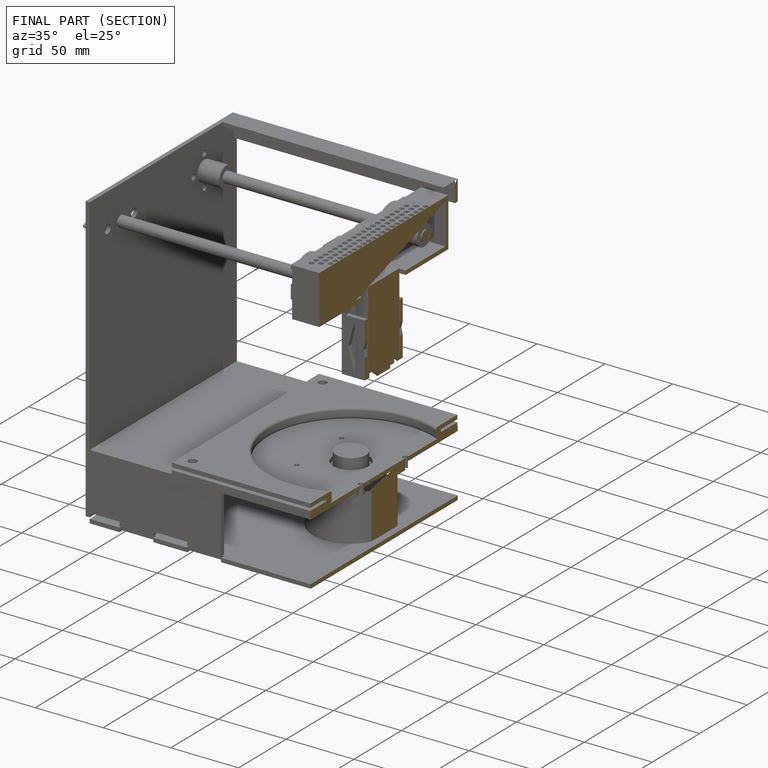
[diagram: finished part — half-section view (interior)]
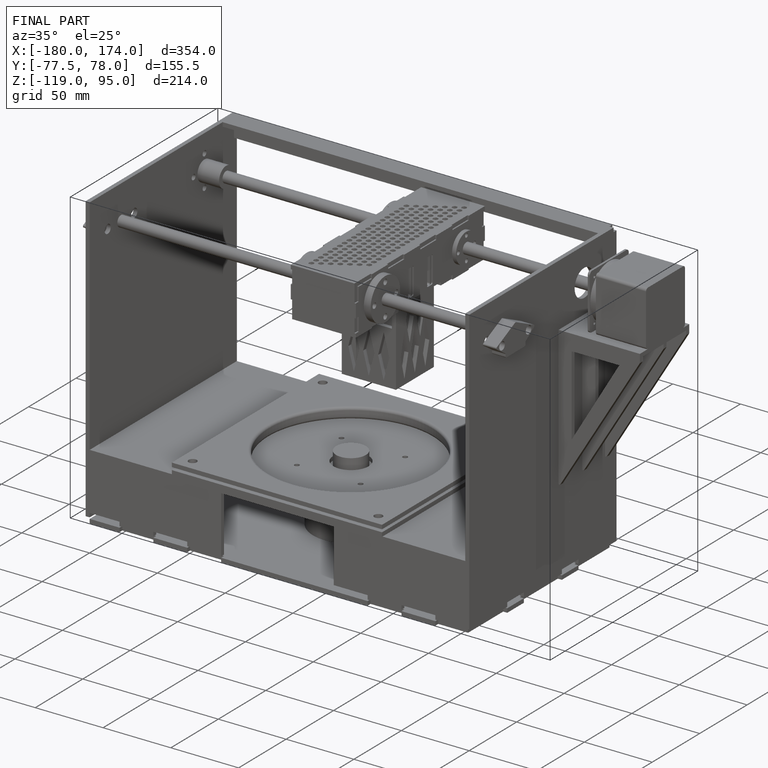
[diagram: finished part — iso view with bounding-box wireframe]
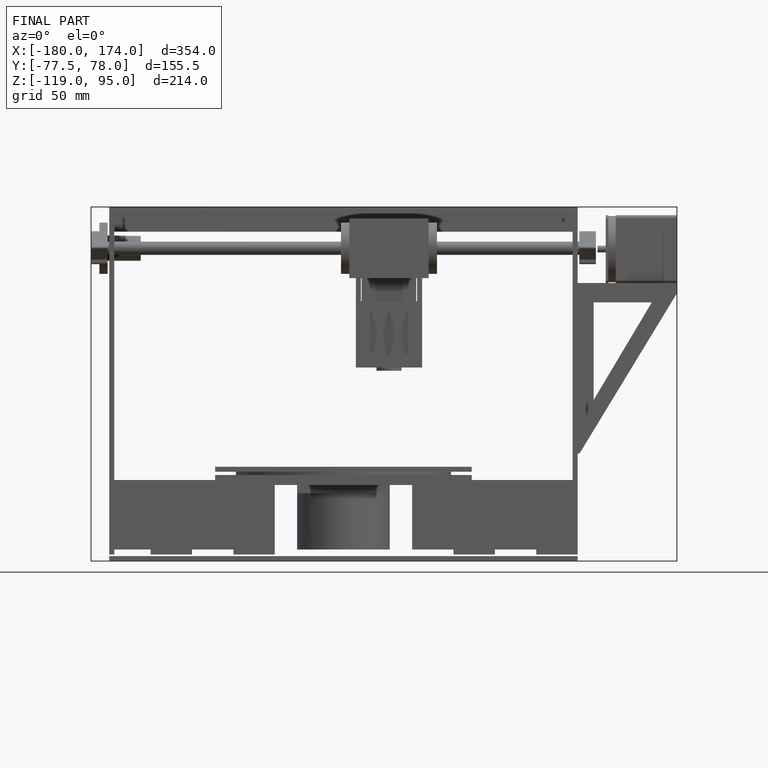
[diagram: finished part — front view with bounding-box wireframe]
